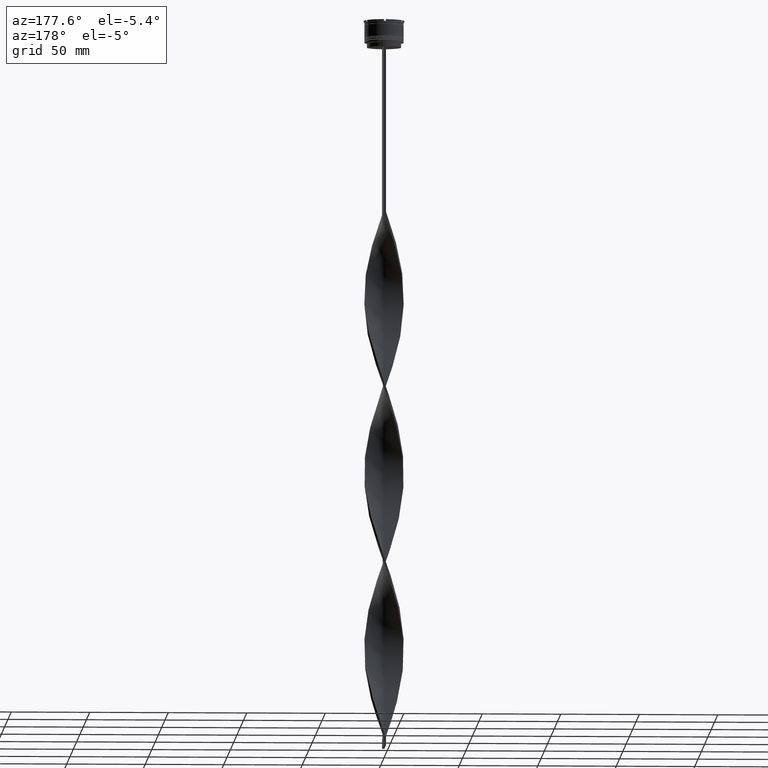
[diagram: clean part render]
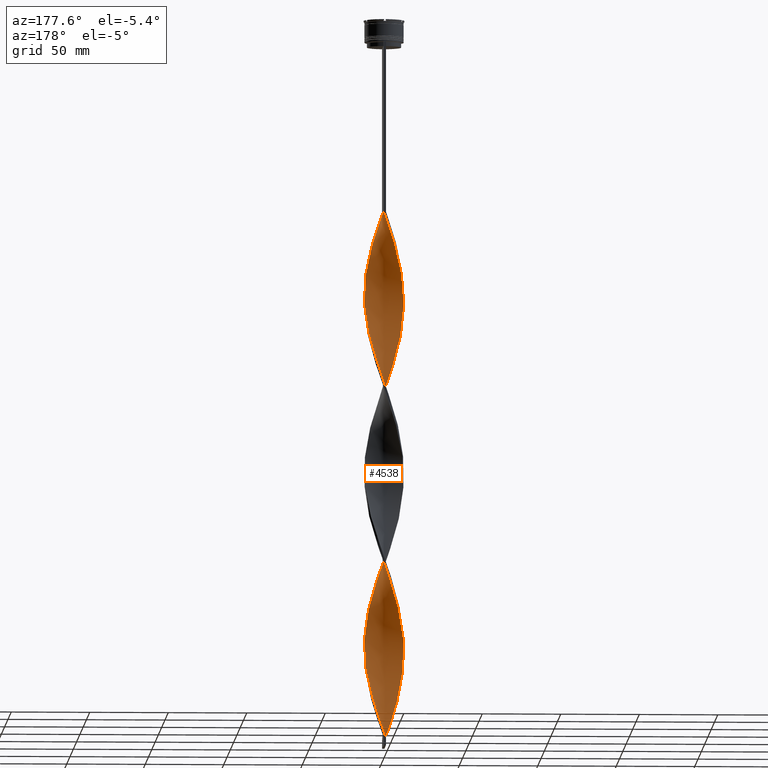
[diagram: same view with one face highlighted and labeled with its STEP entity id]
A machine part, auxiliary view. The second image highlights one B-rep face of the part: STEP entity #4538.
In plain terms, the highlighted face is a freeform B-spline surface patch.
Its self-contained STEP definition (entity closure, byte-faithful):
#3 = CARTESIAN_POINT ( 'NONE',  ( 5.874911659039469214, -11.05883868218006505, -362.2727272727273089 ) ) ;
#4 = CARTESIAN_POINT ( 'NONE',  ( 9.938015229887191992, -7.618946993550370195, -377.5454545454545610 ) ) ;
#5 = CARTESIAN_POINT ( 'NONE',  ( 0.7500000000000002220, -12.50000000000000000, -123.0000000000000000 ) ) ;
#9 = CARTESIAN_POINT ( 'NONE',  ( -6.665855411790016838, -10.63865670754232440, -217.1818181818181586 ) ) ;
#21 = CARTESIAN_POINT ( 'NONE',  ( 12.00455592986043030, -3.674953311088231089, -390.2727272727272521 ) ) ;
#29 = CARTESIAN_POINT ( 'NONE',  ( -12.47950415221662368, -1.036569397005362880, -408.0909090909091219 ) ) ;
#44 = CARTESIAN_POINT ( 'NONE',  ( 9.938015229887191992, -7.618946993550370195, -377.5454545454545610 ) ) ;
#55 = CARTESIAN_POINT ( 'NONE',  ( 7.388950367818355680, -10.11018854729806726, -143.3636363636363740 ) ) ;
#76 = CARTESIAN_POINT ( 'NONE',  ( 2.521301559826763850, -12.26603189480669442, -128.0909090909090935 ) ) ;
#97 = CARTESIAN_POINT ( 'NONE',  ( -2.802037230306997806, 12.20496158781229035, -357.1818181818181301 ) ) ;
#112 = CARTESIAN_POINT ( 'NONE',  ( -0.7499999999999986677, 12.50000000000000000, -459.0000000000000000 ) ) ;
#121 = CARTESIAN_POINT ( 'NONE',  ( -7.388950367818358345, -10.11018854729806549, -438.6363636363636829 ) ) ;
#146 = CARTESIAN_POINT ( 'NONE',  ( -11.05883868218006683, -5.874911659039464773, -306.2727272727272521 ) ) ;
#159 = CARTESIAN_POINT ( 'NONE',  ( 0.1440176444849638193, 12.55364105866909874, -456.4545454545454390 ) ) ;
#165 = CARTESIAN_POINT ( 'NONE',  ( -9.581720387053806576, -8.112045323846697187, -313.9090909090908212 ) ) ;
#168 = DIRECTION ( 'NONE',  ( 0.000000000000000000, 1.000000000000000000, 0.000000000000000000 ) ) ;
#170 = CARTESIAN_POINT ( 'NONE',  ( -1.036569397005364657, 12.47950415221662368, -352.0909090909091219 ) ) ;
#185 = CARTESIAN_POINT ( 'NONE',  ( 7.618946993550371971, 9.938015229887190216, -209.5454545454545325 ) ) ;
#186 = CARTESIAN_POINT ( 'NONE',  ( -8.955724128969263731, -8.752571355081759208, -316.4545454545454390 ) ) ;
#193 = CARTESIAN_POINT ( 'NONE',  ( -5.345974020927152459, 11.35936647350535722, -364.8181818181818130 ) ) ;
#214 = CARTESIAN_POINT ( 'NONE',  ( 7.388950367818355680, -10.11018854729806726, -143.3636363636363740 ) ) ;
#215 = CARTESIAN_POINT ( 'NONE',  ( 0.1440176444849638193, 12.55364105866909874, -232.4545454545454390 ) ) ;
#221 = CARTESIAN_POINT ( 'NONE',  ( 10.92114977348146709, 6.127070068571577544, -311.3636363636363740 ) ) ;
#223 = CARTESIAN_POINT ( 'NONE',  ( -10.11018854729806549, 7.388950367818356568, -158.6363636363636260 ) ) ;
#236 = CARTESIAN_POINT ( 'NONE',  ( 10.92114977348146354, -6.127070068571585537, -158.6363636363636260 ) ) ;
#237 = CARTESIAN_POINT ( 'NONE',  ( -11.35936647350535367, 5.345974020927156900, -273.1818181818181870 ) ) ;
#253 = CARTESIAN_POINT ( 'NONE',  ( -12.40536724576414862, -1.929121149525766965, -186.6363636363636260 ) ) ;
#255 = CARTESIAN_POINT ( 'NONE',  ( -10.63865670754232795, 6.665855411790015062, -385.1818181818181301 ) ) ;
#265 = CARTESIAN_POINT ( 'NONE',  ( -9.938015229887190216, 7.618946993550371971, -265.5454545454545041 ) ) ;
#266 = CARTESIAN_POINT ( 'NONE',  ( -6.127070068571582873, -10.92114977348146354, -326.6363636363636260 ) ) ;
#272 = CARTESIAN_POINT ( 'NONE',  ( 8.752571355081753879, 8.955724128969267284, -321.5454545454545610 ) ) ;
#279 = CARTESIAN_POINT ( 'NONE',  ( -11.35936647350535544, -5.345974020927153347, -196.8181818181818130 ) ) ;
#291 = CARTESIAN_POINT ( 'NONE',  ( 9.393097386316819453, -8.329727870884726215, -150.9999999999999716 ) ) ;
#292 = CARTESIAN_POINT ( 'NONE',  ( 8.955724128969265507, 8.752571355081755655, -428.4545454545454959 ) ) ;
#298 = CARTESIAN_POINT ( 'NONE',  ( -10.92114977348146354, -6.127070068571584649, -199.3636363636363455 ) ) ;
#304 = CARTESIAN_POINT ( 'NONE',  ( 0.1440176444849607940, -12.55364105866909874, -237.5454545454545325 ) ) ;
#306 = CARTESIAN_POINT ( 'NONE',  ( -10.11018854729806549, 7.388950367818356568, -382.6363636363636829 ) ) ;
#309 = CARTESIAN_POINT ( 'NONE',  ( 6.665855411790014173, -10.63865670754232795, -364.8181818181818130 ) ) ;
#310 = CARTESIAN_POINT ( 'NONE',  ( 11.05883868218006505, 5.874911659039468326, -418.2727272727273089 ) ) ;
#317 = CARTESIAN_POINT ( 'NONE',  ( -2.521301559826764294, -12.26603189480669442, -229.9090909090909065 ) ) ;
#324 = CARTESIAN_POINT ( 'NONE',  ( -12.20496158781229035, -2.802037230306997806, -413.1818181818181870 ) ) ;
#329 = CARTESIAN_POINT ( 'NONE',  ( 7.388950367818355680, -10.11018854729806726, -367.3636363636363740 ) ) ;
#330 = CARTESIAN_POINT ( 'NONE',  ( 7.388950367818355680, -10.11018854729806726, -367.3636363636363740 ) ) ;
#336 = CARTESIAN_POINT ( 'NONE',  ( 12.08570484828248581, -3.398585475168570014, -283.3636363636362603 ) ) ;
#348 = CARTESIAN_POINT ( 'NONE',  ( -12.50000000000000000, 0.7500000000000009992, -403.0000000000000000 ) ) ;
#355 = CARTESIAN_POINT ( 'NONE',  ( -8.955724128969263731, -8.752571355081759208, -316.4545454545454390 ) ) ;
#357 = CARTESIAN_POINT ( 'NONE',  ( -7.618946993550366642, -9.938015229887193769, -321.5454545454545610 ) ) ;
#363 = CARTESIAN_POINT ( 'NONE',  ( -5.874911659039468326, -11.05883868218006505, -219.7272727272727195 ) ) ;
#377 = CARTESIAN_POINT ( 'NONE',  ( -12.55364105866909874, 0.1440176444849590454, -288.4545454545454390 ) ) ;
#384 = CARTESIAN_POINT ( 'NONE',  ( 4.241276690728744470, -11.78236275255014576, -133.1818181818181870 ) ) ;
#394 = CARTESIAN_POINT ( 'NONE',  ( -8.329727870884727992, -9.393097386316815900, -319.0000000000000000 ) ) ;
#403 = CARTESIAN_POINT ( 'NONE',  ( -4.241276690728744470, -11.78236275255014576, -448.8181818181818130 ) ) ;
#432 = CARTESIAN_POINT ( 'NONE',  ( -3.398585475168563796, -12.08570484828248759, -451.3636363636364877 ) ) ;
#450 = CARTESIAN_POINT ( 'NONE',  ( 4.241276690728745358, 11.78236275255014576, -336.8181818181818130 ) ) ;
#453 = EDGE_CURVE ( 'NONE', #3811, #2792, #1413, .T. ) ;
#460 = CARTESIAN_POINT ( 'NONE',  ( -1.036569397005364657, 12.47950415221662368, -128.0909090909090935 ) ) ;
#471 = CARTESIAN_POINT ( 'NONE',  ( -10.48293307345756986, -6.908166116216013286, -425.9090909090908781 ) ) ;
#495 = CARTESIAN_POINT ( 'NONE',  ( -12.50000000000000000, -0.7499999999999980016, -291.0000000000000568 ) ) ;
#500 = CARTESIAN_POINT ( 'NONE',  ( 1.929121149525763412, -12.40536724576414862, -242.6363636363636260 ) ) ;
#509 = CARTESIAN_POINT ( 'NONE',  ( -1.929121149525765855, 12.40536724576414862, -130.6363636363636260 ) ) ;
#520 = CARTESIAN_POINT ( 'NONE',  ( -10.63865670754232795, -6.665855411790015062, -308.8181818181817562 ) ) ;
#524 = CARTESIAN_POINT ( 'NONE',  ( 1.644017644484960128, 12.44635894133090126, -344.4545454545453822 ) ) ;
#543 = CARTESIAN_POINT ( 'NONE',  ( 9.581720387053804799, 8.112045323846697187, -201.9090909090909065 ) ) ;
#544 = CARTESIAN_POINT ( 'NONE',  ( -10.92114977348146532, 6.127070068571582873, -270.6363636363636829 ) ) ;
#550 = CARTESIAN_POINT ( 'NONE',  ( -3.674953311088230201, 12.00455592986043030, -359.7272727272726911 ) ) ;
#552 = CARTESIAN_POINT ( 'NONE',  ( -8.955724128969265507, 8.752571355081757432, -153.5454545454545325 ) ) ;
#566 = CARTESIAN_POINT ( 'NONE',  ( 5.083967906288925143, -11.47902065681779860, -135.7272727272726911 ) ) ;
#568 = CARTESIAN_POINT ( 'NONE',  ( 1.929121149525765855, 12.40536724576414862, -227.3636363636363171 ) ) ;
#576 = CARTESIAN_POINT ( 'NONE',  ( -1.929121149525765855, 12.40536724576414862, -130.6363636363636545 ) ) ;
#595 = CARTESIAN_POINT ( 'NONE',  ( -1.644017644484961016, 12.44635894133090126, -237.5454545454545325 ) ) ;
#596 = CARTESIAN_POINT ( 'NONE',  ( -5.874911659039470990, 11.05883868218006505, -250.2727272727273089 ) ) ;
#611 = CARTESIAN_POINT ( 'NONE',  ( -9.393097386316819453, -8.329727870884724439, -207.0000000000000284 ) ) ;
#621 = CARTESIAN_POINT ( 'NONE',  ( 2.521301559826763850, -12.26603189480669442, -128.0909090909090935 ) ) ;
#643 = CARTESIAN_POINT ( 'NONE',  ( 4.241276690728744470, -11.78236275255014576, -133.1818181818181870 ) ) ;
#651 = CARTESIAN_POINT ( 'NONE',  ( 6.908166116216011510, -10.48293307345756986, -257.9090909090909349 ) ) ;
#662 = CARTESIAN_POINT ( 'NONE',  ( -12.40536724576414862, -1.929121149525766965, -410.6363636363635692 ) ) ;
#667 = CARTESIAN_POINT ( 'NONE',  ( 11.47902065681779860, 5.083967906288924254, -415.7272727272726911 ) ) ;
#668 = CARTESIAN_POINT ( 'NONE',  ( 12.47950415221662368, -1.036569397005364435, -397.9090909090909349 ) ) ;
#674 = CARTESIAN_POINT ( 'NONE',  ( -10.48293307345756986, -6.908166116216013286, -201.9090909090908781 ) ) ;
#681 = CARTESIAN_POINT ( 'NONE',  ( -10.92114977348146354, -6.127070068571584649, -423.3636363636363740 ) ) ;
#685 = CARTESIAN_POINT ( 'NONE',  ( 2.521301559826763850, -12.26603189480669442, -352.0909090909091219 ) ) ;
#686 = CARTESIAN_POINT ( 'NONE',  ( 5.874911659039469214, -11.05883868218006505, -362.2727272727273089 ) ) ;
#692 = CARTESIAN_POINT ( 'NONE',  ( -1.644017644484964125, -12.44635894133090126, -232.4545454545454390 ) ) ;
#701 = CARTESIAN_POINT ( 'NONE',  ( -8.112045323846697187, -9.581720387053803023, -436.0909090909090651 ) ) ;
#706 = CARTESIAN_POINT ( 'NONE',  ( -11.05883868218006683, -5.874911659039464773, -306.2727272727272521 ) ) ;
#707 = CARTESIAN_POINT ( 'NONE',  ( -0.7499999999999986677, 12.50000000000000000, -459.0000000000000000 ) ) ;
#714 = CARTESIAN_POINT ( 'NONE',  ( 11.68196120168289731, 4.510463666007686889, -306.2727272727272521 ) ) ;
#724 = CARTESIAN_POINT ( 'NONE',  ( -10.48293307345756809, -6.908166116216013286, -425.9090909090908212 ) ) ;
#730 = CARTESIAN_POINT ( 'NONE',  ( -12.40536724576414684, 1.929121149525772294, -283.3636363636363171 ) ) ;
#737 = CARTESIAN_POINT ( 'NONE',  ( 9.393097386316817676, 8.329727870884722662, -319.0000000000000000 ) ) ;
#753 = CARTESIAN_POINT ( 'NONE',  ( -4.510463666007692218, -11.68196120168289553, -331.7272727272727479 ) ) ;
#759 = CARTESIAN_POINT ( 'NONE',  ( -5.083967906288923366, -11.47902065681780037, -446.2727272727271952 ) ) ;
#776 = CARTESIAN_POINT ( 'NONE',  ( -0.1440176444849628479, 12.55364105866909874, -349.5454545454545610 ) ) ;
#803 = CARTESIAN_POINT ( 'NONE',  ( -12.44635894133090126, 1.644017644484963236, -400.4545454545453822 ) ) ;
#811 = CARTESIAN_POINT ( 'NONE',  ( -0.1440176444849628479, 12.55364105866909874, -125.5454545454545467 ) ) ;
#814 = CARTESIAN_POINT ( 'NONE',  ( 1.929121149525765855, 12.40536724576414862, -451.3636363636364308 ) ) ;
#823 = CARTESIAN_POINT ( 'NONE',  ( -1.036569397005364657, 12.47950415221662368, -352.0909090909091219 ) ) ;
#841 = CARTESIAN_POINT ( 'NONE',  ( 10.63865670754232617, 6.665855411790015950, -196.8181818181817846 ) ) ;
#864 = CARTESIAN_POINT ( 'NONE',  ( -11.78236275255014576, -4.241276690728740029, -301.1818181818182438 ) ) ;
#870 = CARTESIAN_POINT ( 'NONE',  ( 12.55364105866909874, 0.1440176444849655957, -293.5454545454545041 ) ) ;
#872 = CARTESIAN_POINT ( 'NONE',  ( -3.674953311088230201, 12.00455592986043030, -135.7272727272726911 ) ) ;
#893 = CARTESIAN_POINT ( 'NONE',  ( -12.40536724576414684, 1.929121149525772072, -283.3636363636362603 ) ) ;
#897 = CARTESIAN_POINT ( 'NONE',  ( -0.1440176444849628479, 12.55364105866909874, -349.5454545454545610 ) ) ;
#899 = CARTESIAN_POINT ( 'NONE',  ( -9.581720387053804799, 8.112045323846698963, -156.0909090909090935 ) ) ;
#906 = CARTESIAN_POINT ( 'NONE',  ( -6.665855411790016838, -10.63865670754232440, -217.1818181818181586 ) ) ;
#916 = CARTESIAN_POINT ( 'NONE',  ( -3.398585475168561576, 12.08570484828248759, -242.6363636363636260 ) ) ;
#917 = CARTESIAN_POINT ( 'NONE',  ( 12.55364105866909874, -0.1440176444849629589, -176.4545454545454390 ) ) ;
#922 = CARTESIAN_POINT ( 'NONE',  ( 4.241276690728745358, 11.78236275255014576, -336.8181818181818130 ) ) ;
#938 = CARTESIAN_POINT ( 'NONE',  ( -0.7499999999999986677, 12.50000000000000000, -235.0000000000000000 ) ) ;
#939 = CARTESIAN_POINT ( 'NONE',  ( 11.68196120168289553, -4.510463666007692218, -163.7272727272727195 ) ) ;
#947 = CARTESIAN_POINT ( 'NONE',  ( 10.48293307345756986, 6.908166116216011510, -313.9090909090908781 ) ) ;
#949 = CARTESIAN_POINT ( 'NONE',  ( -11.78236275255014576, 4.241276690728745358, -168.8181818181818130 ) ) ;
#966 = CARTESIAN_POINT ( 'NONE',  ( -8.752571355081755655, 8.955724128969267284, -260.4545454545454959 ) ) ;
#967 = CARTESIAN_POINT ( 'NONE',  ( 2.802037230306997806, 12.20496158781229035, -448.8181818181818130 ) ) ;
#973 = CARTESIAN_POINT ( 'NONE',  ( 12.47950415221662368, 1.036569397005361104, -296.0909090909090651 ) ) ;
#986 = CARTESIAN_POINT ( 'NONE',  ( -9.581720387053804799, 8.112045323846697187, -380.0909090909090651 ) ) ;
#991 = CARTESIAN_POINT ( 'NONE',  ( 8.752571355081757432, -8.955724128969265507, -148.4545454545454390 ) ) ;
#992 = CARTESIAN_POINT ( 'NONE',  ( 6.665855411790015062, -10.63865670754232795, -364.8181818181818130 ) ) ;
#996 = CARTESIAN_POINT ( 'NONE',  ( -0.7500000000000017764, -12.50000000000000000, -235.0000000000000000 ) ) ;
#1009 = CARTESIAN_POINT ( 'NONE',  ( 12.20496158781229035, -2.802037230306999582, -392.8181818181818699 ) ) ;
#1010 = CARTESIAN_POINT ( 'NONE',  ( -5.345974020927156900, -11.35936647350535367, -329.1818181818180733 ) ) ;
#1018 = CARTESIAN_POINT ( 'NONE',  ( 5.345974020927153347, -11.35936647350535722, -252.8181818181817562 ) ) ;
#1027 = CARTESIAN_POINT ( 'NONE',  ( -1.644017644484964125, -12.44635894133090126, -456.4545454545454390 ) ) ;
#1034 = CARTESIAN_POINT ( 'NONE',  ( 9.393097386316819453, -8.329727870884726215, -374.9999999999999432 ) ) ;
#1035 = CARTESIAN_POINT ( 'NONE',  ( 12.00455592986043030, -3.674953311088231089, -390.2727272727272521 ) ) ;
#1041 = CARTESIAN_POINT ( 'NONE',  ( -12.44635894133090126, 1.644017644484963236, -176.4545454545454390 ) ) ;
#1054 = CARTESIAN_POINT ( 'NONE',  ( 10.11018854729806549, 7.388950367818355680, -423.3636363636363740 ) ) ;
#1055 = CARTESIAN_POINT ( 'NONE',  ( 12.08570484828248759, 3.398585475168564685, -410.6363636363636260 ) ) ;
#1061 = CARTESIAN_POINT ( 'NONE',  ( 12.40536724576414862, 1.929121149525767853, -298.6363636363635692 ) ) ;
#1071 = CARTESIAN_POINT ( 'NONE',  ( -11.47902065681779860, -5.083967906288925143, -303.7272727272727479 ) ) ;
#1081 = CARTESIAN_POINT ( 'NONE',  ( 12.50000000000000000, -0.7500000000000025535, -291.0000000000000568 ) ) ;
#1096 = CARTESIAN_POINT ( 'NONE',  ( 12.50000000000000000, 0.7499999999999994449, -403.0000000000000000 ) ) ;
#1106 = CARTESIAN_POINT ( 'NONE',  ( -9.393097386316819453, -8.329727870884724439, -430.9999999999999432 ) ) ;
#1126 = CARTESIAN_POINT ( 'NONE',  ( 8.752571355081757432, -8.955724128969265507, -148.4545454545454390 ) ) ;
#1137 = CARTESIAN_POINT ( 'NONE',  ( -11.47902065681779860, 5.083967906288926031, -166.2727272727272521 ) ) ;
#1147 = CARTESIAN_POINT ( 'NONE',  ( 10.48293307345756986, -6.908166116216013286, -156.0909090909090935 ) ) ;
#1176 = CARTESIAN_POINT ( 'NONE',  ( -3.674953311088230201, 12.00455592986043030, -359.7272727272726343 ) ) ;
#1185 = CARTESIAN_POINT ( 'NONE',  ( -11.05883868218006505, 5.874911659039470102, -163.7272727272727195 ) ) ;
#1196 = CARTESIAN_POINT ( 'NONE',  ( 0.7500000000000002220, -12.50000000000000000, -123.0000000000000000 ) ) ;
#1216 = CARTESIAN_POINT ( 'NONE',  ( -2.521301559826761629, 12.26603189480669798, -240.0909090909090651 ) ) ;
#1222 = CARTESIAN_POINT ( 'NONE',  ( -2.802037230306997806, 12.20496158781229035, -133.1818181818181870 ) ) ;
#1241 = CARTESIAN_POINT ( 'NONE',  ( -1.644017644484961016, 12.44635894133090126, -237.5454545454545325 ) ) ;
#1247 = CARTESIAN_POINT ( 'NONE',  ( 6.908166116216011510, -10.48293307345756809, -257.9090909090909349 ) ) ;
#1249 = CARTESIAN_POINT ( 'NONE',  ( -6.908166116216011510, 10.48293307345756986, -145.9090909090909065 ) ) ;
#1259 = CARTESIAN_POINT ( 'NONE',  ( -1.644017644484964125, -12.44635894133090126, -232.4545454545454390 ) ) ;
#1262 = B_SPLINE_CURVE_WITH_KNOTS ( 'NONE', 3,
 ( #1929, #4401, #2619, #4049 ),
 .UNSPECIFIED., .F., .F.,
 ( 4, 4 ),
 ( 0.000000000000000000, 1.000000000000000000 ),
 .UNSPECIFIED. ) ;
#1270 = CARTESIAN_POINT ( 'NONE',  ( -2.521301559826761629, 12.26603189480669798, -240.0909090909090651 ) ) ;
#1271 = CARTESIAN_POINT ( 'NONE',  ( 12.08570484828248759, 3.398585475168564685, -186.6363636363636260 ) ) ;
#1276 = CARTESIAN_POINT ( 'NONE',  ( 12.40536724576414862, 1.929121149525767853, -298.6363636363635692 ) ) ;
#1292 = CARTESIAN_POINT ( 'NONE',  ( 3.674953311088228425, 12.00455592986043207, -222.2727272727272805 ) ) ;
#1293 = CARTESIAN_POINT ( 'NONE',  ( -4.241276690728740917, 11.78236275255014576, -245.1818181818181870 ) ) ;
#1314 = CARTESIAN_POINT ( 'NONE',  ( -5.874911659039470990, 11.05883868218006505, -250.2727272727273089 ) ) ;
#1315 = CARTESIAN_POINT ( 'NONE',  ( -6.665855411790015950, 10.63865670754232795, -252.8181818181817562 ) ) ;
#1322 = CARTESIAN_POINT ( 'NONE',  ( 3.398585475168571346, 12.08570484828248581, -339.3636363636363171 ) ) ;
#1328 = ORIENTED_EDGE ( 'NONE', *, *, #2916, .T. ) ;
#1333 = CARTESIAN_POINT ( 'NONE',  ( -9.938015229887191992, -7.618946993550368418, -428.4545454545454959 ) ) ;
#1338 = CARTESIAN_POINT ( 'NONE',  ( -10.48293307345756631, 6.908166116216014174, -268.0909090909090651 ) ) ;
#1339 = CARTESIAN_POINT ( 'NONE',  ( 11.68196120168289553, -4.510463666007692218, -387.7272727272727479 ) ) ;
#1346 = CARTESIAN_POINT ( 'NONE',  ( 5.874911659039470102, 11.05883868218006505, -331.7272727272727479 ) ) ;
#1354 = CARTESIAN_POINT ( 'NONE',  ( -12.00455592986043030, -3.674953311088229313, -191.7272727272727479 ) ) ;
#1367 = CARTESIAN_POINT ( 'NONE',  ( -12.08570484828248759, 3.398585475168562908, -171.3636363636363171 ) ) ;
#1377 = CARTESIAN_POINT ( 'NONE',  ( -11.78236275255014576, 4.241276690728745358, -392.8181818181818699 ) ) ;
#1382 = CARTESIAN_POINT ( 'NONE',  ( -12.08570484828248759, -3.398585475168566017, -298.6363636363635692 ) ) ;
#1383 = CARTESIAN_POINT ( 'NONE',  ( 12.40536724576414862, -1.929121149525764967, -395.3636363636362603 ) ) ;
#1390 = CARTESIAN_POINT ( 'NONE',  ( -4.241276690728744470, -11.78236275255014576, -224.8181818181818130 ) ) ;
#1410 = CARTESIAN_POINT ( 'NONE',  ( 12.26603189480669798, 2.521301559826762517, -408.0909090909091219 ) ) ;
#1411 = CARTESIAN_POINT ( 'NONE',  ( 4.510463666007690442, 11.68196120168289553, -443.7272727272727479 ) ) ;
#1413 =( BOUNDED_CURVE ( )  B_SPLINE_CURVE ( 2, ( #2272, #811, #460, #509, #3693, #1580, #1935, #3368, #3311, #2669, #1498, #4100, #4362, #1536, #2966, #4408, #1185, #1137, #2622, #4005, #4054, #3063, #3796, #2723, #4151, #253, #2061, #1354, #3137, #279, #2743, #4176, #3870, #611, #3468, #4129, #2369, #906, #2015, #1958, #3108, #3035, #4486, #1259, #2091, #304, #1729, #500, #3003, #1650, #1928, #2315, #2714, #1247, #1673, #1574, #3785, #4524, #2736, #3361, #4448, #3816, #3077, #2659, #4088, #4165, #2004, #870, #973, #1276, #3439, #4474, #1623, #2339, #221, #947, #2387, #3101, #3739, #2029, #3762, #4546, #3383, #4146, #922, #1322, #2762, #524, #1951, #897, #170, #1595, #3025, #550, #3406, #193, #3872, #2112, #2132, #2158, #3558, #986, #306, #255, #2771, #2437, #1377, #3179, #2465, #4580, #348, #3899, #1710, #662, #324, #3540, #2837, #2094, #681, #724, #1333, #2790, #3138, #701, #1751, #3204, #1774, #2485, #3521, #4645, #1684, #1027, #1425 ),
 .UNSPECIFIED., .F., .T. ) 
 B_SPLINE_CURVE_WITH_KNOTS ( ( 3, 2, 2, 2, 2, 2, 2, 2, 2, 2, 2, 2, 2, 2, 2, 2, 2, 2, 2, 2, 2, 2, 2, 2, 2, 2, 2, 2, 2, 2, 2, 2, 2, 2, 2, 2, 2, 2, 2, 2, 2, 2, 2, 2, 2, 2, 2, 2, 2, 2, 2, 2, 2, 2, 2, 2, 2, 2, 2, 2, 2, 2, 2, 2, 2, 2, 3 ),
 ( 0.000000000000000000, 0.01136363636363636222, 0.02272727272727272443, 0.03409090909090908839, 0.04545454545454544887, 0.05681818181818181629, 0.06818181818181817677, 0.07954545454545454419, 0.09090909090909089774, 0.1022727272727272790, 0.1136363636363636326, 0.1250000000000000000, 0.1363636363636363535, 0.1477272727272727348, 0.1590909090909090884, 0.1704545454545454419, 0.1818181818181817955, 0.1931818181818182045, 0.2045454545454545581, 0.2159090909090909116, 0.2272727272727272652, 0.2386363636363636465, 0.2500000000000000000, 0.2613636363636363535, 0.2727272727272727071, 0.2840909090909091161, 0.2954545454545454697, 0.3068181818181818232, 0.3181818181818181768, 0.3295454545454545303, 0.3409090909090908839, 0.3522727272727272929, 0.3636363636363635909, 0.3750000000000000000, 0.3863636363636364091, 0.3977272727272727071, 0.4090909090909091161, 0.4204545454545454697, 0.4318181818181818232, 0.4431818181818181768, 0.4545454545454545303, 0.4659090909090908839, 0.4772727272727272929, 0.4886363636363635909, 0.5000000000000000000, 0.5113636363636363535, 0.5227272727272727071, 0.5340909090909090606, 0.5454545454545454142, 0.5568181818181817677, 0.5681818181818182323, 0.5795454545454545858, 0.5909090909090909394, 0.6022727272727272929, 0.6136363636363636465, 0.6250000000000000000, 0.6363636363636363535, 0.6477272727272727071, 0.6590909090909090606, 0.6704545454545454142, 0.6818181818181817677, 0.6931818181818182323, 0.7045454545454545858, 0.7159090909090909394, 0.7272727272727271819, 0.7386363636363636465, 0.7500000000000000000 ),
 .UNSPECIFIED. ) 
 CURVE ( )  GEOMETRIC_REPRESENTATION_ITEM ( )  RATIONAL_B_SPLINE_CURVE ( ( 1.000000000000000000, 0.9974521146102535152, 1.000000000000000000, 0.9974521146102535152, 1.000000000000000000, 0.9974521146102535152, 1.000000000000000000, 0.9974521146102535152, 1.000000000000000000, 0.9974521146102535152, 1.000000000000000000, 0.9974521146102535152, 1.000000000000000000, 0.9974521146102535152, 1.000000000000000000, 0.9974521146102535152, 1.000000000000000000, 0.9974521146102535152, 1.000000000000000000, 0.9974521146102535152, 1.000000000000000000, 0.9974521146102535152, 1.000000000000000000, 0.9974521146102535152, 1.000000000000000000, 0.9974521146102535152, 1.000000000000000000, 0.9974521146102535152, 1.000000000000000000, 0.9974521146102535152, 1.000000000000000000, 0.9974521146102535152, 1.000000000000000000, 0.9974521146102535152, 1.000000000000000000, 0.9974521146102535152, 1.000000000000000000, 0.9974521146102535152, 1.000000000000000000, 0.9974521146102535152, 1.000000000000000000, 0.9974521146102535152, 1.000000000000000000, 0.9974521146102535152, 1.000000000000000000, 0.9974521146102535152, 1.000000000000000000, 0.9974521146102535152, 1.000000000000000000, 0.9974521146102535152, 1.000000000000000000, 0.9974521146102535152, 1.000000000000000000, 0.9974521146102535152, 1.000000000000000000, 0.9974521146102535152, 1.000000000000000000, 0.9974521146102535152, 1.000000000000000000, 0.9974521146102535152, 1.000000000000000000, 0.9974521146102535152, 1.000000000000000000, 0.9974521146102535152, 1.000000000000000000, 0.9974521146102535152, 1.000000000000000000, 0.9974521146102535152, 1.000000000000000000, 0.9974521146102535152, 1.000000000000000000, 0.9974521146102535152, 1.000000000000000000, 0.9974521146102535152, 1.000000000000000000, 0.9974521146102535152, 1.000000000000000000, 0.9974521146102535152, 1.000000000000000000, 0.9974521146102535152, 1.000000000000000000, 0.9974521146102535152, 1.000000000000000000, 0.9974521146102535152, 1.000000000000000000, 0.9974521146102535152, 1.000000000000000000, 0.9974521146102535152, 1.000000000000000000, 0.9974521146102535152, 1.000000000000000000, 0.9974521146102535152, 1.000000000000000000, 0.9974521146102535152, 1.000000000000000000, 0.9974521146102535152, 1.000000000000000000, 0.9974521146102535152, 1.000000000000000000, 0.9974521146102535152, 1.000000000000000000, 0.9974521146102535152, 1.000000000000000000, 0.9974521146102535152, 1.000000000000000000, 0.9974521146102535152, 1.000000000000000000, 0.9974521146102535152, 1.000000000000000000, 0.9974521146102535152, 1.000000000000000000, 0.9974521146102535152, 1.000000000000000000, 0.9974521146102535152, 1.000000000000000000, 0.9974521146102535152, 1.000000000000000000, 0.9974521146102535152, 1.000000000000000000, 0.9974521146102535152, 1.000000000000000000, 0.9974521146102535152, 1.000000000000000000, 0.9974521146102535152, 1.000000000000000000, 0.9974521146102535152, 1.000000000000000000, 0.9974521146102535152, 1.000000000000000000, 0.9974521146102535152, 1.000000000000000000, 0.9974521146102535152, 1.000000000000000000 ) ) 
 REPRESENTATION_ITEM ( '' )  );
#1418 = CARTESIAN_POINT ( 'NONE',  ( -12.26603189480669442, 2.521301559826763850, -173.9090909090909065 ) ) ;
#1425 = CARTESIAN_POINT ( 'NONE',  ( -0.7500000000000017764, -12.50000000000000000, -459.0000000000000000 ) ) ;
#1432 = CARTESIAN_POINT ( 'NONE',  ( 8.329727870884726215, 9.393097386316817676, -430.9999999999999432 ) ) ;
#1433 = CARTESIAN_POINT ( 'NONE',  ( 7.618946993550371971, 9.938015229887190216, -433.5454545454545610 ) ) ;
#1440 = CARTESIAN_POINT ( 'NONE',  ( -7.388950367818358345, -10.11018854729806549, -214.6363636363636260 ) ) ;
#1452 = CARTESIAN_POINT ( 'NONE',  ( -1.036569397005366655, -12.47950415221662368, -341.9090909090909349 ) ) ;
#1460 = CARTESIAN_POINT ( 'NONE',  ( -1.929121149525765855, 12.40536724576414862, -354.6363636363635692 ) ) ;
#1478 = CARTESIAN_POINT ( 'NONE',  ( -11.68196120168289553, 4.510463666007691330, -275.7272727272726911 ) ) ;
#1487 = CARTESIAN_POINT ( 'NONE',  ( 2.521301559826766070, 12.26603189480669442, -341.9090909090909349 ) ) ;
#1498 = CARTESIAN_POINT ( 'NONE',  ( -7.618946993550370195, 9.938015229887191992, -148.4545454545454390 ) ) ;
#1505 = CARTESIAN_POINT ( 'NONE',  ( -12.20496158781229035, -2.802037230306997806, -413.1818181818181870 ) ) ;
#1526 = CARTESIAN_POINT ( 'NONE',  ( -0.7500000000000017764, -12.50000000000000000, -459.0000000000000000 ) ) ;
#1527 = CARTESIAN_POINT ( 'NONE',  ( -11.47902065681779860, 5.083967906288926031, -390.2727272727272521 ) ) ;
#1536 = CARTESIAN_POINT ( 'NONE',  ( -9.581720387053804799, 8.112045323846697187, -156.0909090909090935 ) ) ;
#1548 = CARTESIAN_POINT ( 'NONE',  ( -4.510463666007691330, 11.68196120168289553, -362.2727272727273089 ) ) ;
#1562 = CARTESIAN_POINT ( 'NONE',  ( 6.127070068571586425, 10.92114977348146354, -438.6363636363636829 ) ) ;
#1569 = CARTESIAN_POINT ( 'NONE',  ( 5.345974020927156012, 11.35936647350535367, -217.1818181818181586 ) ) ;
#1574 = CARTESIAN_POINT ( 'NONE',  ( 8.329727870884724439, -9.393097386316819453, -262.9999999999999432 ) ) ;
#1580 = CARTESIAN_POINT ( 'NONE',  ( -3.674953311088230201, 12.00455592986043030, -135.7272727272726911 ) ) ;
#1591 = CARTESIAN_POINT ( 'NONE',  ( -9.393097386316817676, 8.329727870884726215, -262.9999999999999432 ) ) ;
#1595 = CARTESIAN_POINT ( 'NONE',  ( -1.929121149525765855, 12.40536724576414862, -354.6363636363635692 ) ) ;
#1598 = CARTESIAN_POINT ( 'NONE',  ( -0.1440176444849628479, 12.55364105866909874, -125.5454545454545467 ) ) ;
#1614 = CARTESIAN_POINT ( 'NONE',  ( 2.802037230306997806, 12.20496158781229035, -224.8181818181818130 ) ) ;
#1616 = CARTESIAN_POINT ( 'NONE',  ( -8.329727870884727992, -9.393097386316815900, -319.0000000000000000 ) ) ;
#1623 = CARTESIAN_POINT ( 'NONE',  ( 11.68196120168289731, 4.510463666007686889, -306.2727272727272521 ) ) ;
#1643 = CARTESIAN_POINT ( 'NONE',  ( 9.938015229887191992, -7.618946993550370195, -153.5454545454545325 ) ) ;
#1644 = CARTESIAN_POINT ( 'NONE',  ( -0.7499999999999986677, 12.50000000000000000, -235.0000000000000000 ) ) ;
#1650 = CARTESIAN_POINT ( 'NONE',  ( 3.674953311088231089, -12.00455592986043030, -247.7272727272727195 ) ) ;
#1652 = CARTESIAN_POINT ( 'NONE',  ( -10.63865670754232795, 6.665855411790015950, -161.1818181818181870 ) ) ;
#1668 = CARTESIAN_POINT ( 'NONE',  ( 6.908166116216014174, 10.48293307345756809, -212.0909090909090651 ) ) ;
#1673 = CARTESIAN_POINT ( 'NONE',  ( 7.618946993550368418, -9.938015229887193769, -260.4545454545454959 ) ) ;
#1684 = CARTESIAN_POINT ( 'NONE',  ( -2.521301559826764294, -12.26603189480669442, -453.9090909090909349 ) ) ;
#1693 = CARTESIAN_POINT ( 'NONE',  ( -10.92114977348146532, 6.127070068571582873, -270.6363636363636829 ) ) ;
#1694 = CARTESIAN_POINT ( 'NONE',  ( -4.510463666007692218, -11.68196120168289553, -331.7272727272727479 ) ) ;
#1702 = CARTESIAN_POINT ( 'NONE',  ( 8.112045323846700740, 9.581720387053801247, -324.0909090909090082 ) ) ;
#1710 = CARTESIAN_POINT ( 'NONE',  ( -12.47950415221662368, -1.036569397005362880, -408.0909090909091219 ) ) ;
#1717 = CARTESIAN_POINT ( 'NONE',  ( 12.47950415221662368, -1.036569397005364435, -173.9090909090909065 ) ) ;
#1718 = CARTESIAN_POINT ( 'NONE',  ( 10.48293307345756986, -6.908166116216013286, -380.0909090909090651 ) ) ;
#1723 = CARTESIAN_POINT ( 'NONE',  ( -9.938015229887191992, -7.618946993550368418, -204.4545454545454390 ) ) ;
#1729 = CARTESIAN_POINT ( 'NONE',  ( 1.036569397005361992, -12.47950415221662368, -240.0909090909090651 ) ) ;
#1734 = CARTESIAN_POINT ( 'NONE',  ( 3.398585475168564241, -12.08570484828248759, -354.6363636363635692 ) ) ;
#1735 = CARTESIAN_POINT ( 'NONE',  ( 10.63865670754232617, 6.665855411790015950, -420.8181818181818130 ) ) ;
#1742 = CARTESIAN_POINT ( 'NONE',  ( 12.47950415221662368, 1.036569397005361104, -296.0909090909090651 ) ) ;
#1751 = CARTESIAN_POINT ( 'NONE',  ( -7.388950367818358345, -10.11018854729806549, -438.6363636363636829 ) ) ;
#1755 = CARTESIAN_POINT ( 'NONE',  ( 11.35936647350535722, -5.345974020927153347, -385.1818181818181301 ) ) ;
#1756 = CARTESIAN_POINT ( 'NONE',  ( 9.581720387053804799, 8.112045323846698963, -425.9090909090908781 ) ) ;
#1763 = CARTESIAN_POINT ( 'NONE',  ( -8.752571355081759208, -8.955724128969263731, -209.5454545454545325 ) ) ;
#1774 = CARTESIAN_POINT ( 'NONE',  ( -5.874911659039468326, -11.05883868218006505, -443.7272727272727479 ) ) ;
#1782 = CARTESIAN_POINT ( 'NONE',  ( 8.955724128969265507, 8.752571355081755655, -428.4545454545454959 ) ) ;
#1783 = CARTESIAN_POINT ( 'NONE',  ( -1.929121149525772960, -12.40536724576414684, -339.3636363636362603 ) ) ;
#1789 = CARTESIAN_POINT ( 'NONE',  ( 9.938015229887190216, 7.618946993550371971, -316.4545454545454390 ) ) ;
#1803 = CARTESIAN_POINT ( 'NONE',  ( -9.581720387053806576, -8.112045323846695410, -313.9090909090908781 ) ) ;
#1810 = CARTESIAN_POINT ( 'NONE',  ( -12.08570484828248759, 3.398585475168562908, -395.3636363636362603 ) ) ;
#1820 = CARTESIAN_POINT ( 'NONE',  ( -6.908166116216016839, -10.48293307345756453, -324.0909090909090651 ) ) ;
#1827 = CARTESIAN_POINT ( 'NONE',  ( 6.665855411790015062, -10.63865670754232795, -140.8181818181818130 ) ) ;
#1845 = CARTESIAN_POINT ( 'NONE',  ( 1.036569397005364879, 12.47950415221662368, -453.9090909090909349 ) ) ;
#1855 = CARTESIAN_POINT ( 'NONE',  ( -1.644017644484964125, -12.44635894133090126, -456.4545454545454959 ) ) ;
#1873 = CARTESIAN_POINT ( 'NONE',  ( -6.127070068571584649, 10.92114977348146354, -367.3636363636363740 ) ) ;
#1894 = CARTESIAN_POINT ( 'NONE',  ( -9.938015229887191992, -7.618946993550368418, -428.4545454545454959 ) ) ;
#1923 = CARTESIAN_POINT ( 'NONE',  ( -12.26603189480669798, -2.521301559826760741, -296.0909090909090651 ) ) ;
#1928 = CARTESIAN_POINT ( 'NONE',  ( 4.510463666007693107, -11.68196120168289553, -250.2727272727273089 ) ) ;
#1929 = CARTESIAN_POINT ( 'NONE',  ( -0.7500000000000017764, -12.50000000000000000, -459.0000000000000000 ) ) ;
#1935 = CARTESIAN_POINT ( 'NONE',  ( -4.510463666007691330, 11.68196120168289553, -138.2727272727272805 ) ) ;
#1946 = CARTESIAN_POINT ( 'NONE',  ( -10.11018854729807082, -7.388950367818350351, -311.3636363636363740 ) ) ;
#1951 = CARTESIAN_POINT ( 'NONE',  ( 0.7500000000000002220, 12.50000000000000000, -347.0000000000000000 ) ) ;
#1958 = CARTESIAN_POINT ( 'NONE',  ( -5.083967906288923366, -11.47902065681780037, -222.2727272727272805 ) ) ;
#1968 = CARTESIAN_POINT ( 'NONE',  ( 8.955724128969265507, 8.752571355081755655, -204.4545454545454390 ) ) ;
#1969 = CARTESIAN_POINT ( 'NONE',  ( -12.44635894133090126, -1.644017644484965679, -293.5454545454544473 ) ) ;
#1997 = CARTESIAN_POINT ( 'NONE',  ( -5.083967906288926031, 11.47902065681779860, -247.7272727272726911 ) ) ;
#2004 = CARTESIAN_POINT ( 'NONE',  ( 12.50000000000000000, -0.7500000000000025535, -291.0000000000000568 ) ) ;
#2006 = CARTESIAN_POINT ( 'NONE',  ( -6.127070068571584649, 10.92114977348146354, -143.3636363636363740 ) ) ;
#2015 = CARTESIAN_POINT ( 'NONE',  ( -5.874911659039468326, -11.05883868218006505, -219.7272727272727195 ) ) ;
#2023 = CARTESIAN_POINT ( 'NONE',  ( -5.083967906288926031, 11.47902065681779860, -247.7272727272727195 ) ) ;
#2024 = CARTESIAN_POINT ( 'NONE',  ( 8.329727870884726215, 9.393097386316817676, -207.0000000000000284 ) ) ;
#2029 = CARTESIAN_POINT ( 'NONE',  ( 8.112045323846698963, 9.581720387053801247, -324.0909090909090651 ) ) ;
#2048 = CARTESIAN_POINT ( 'NONE',  ( 5.345974020927156012, 11.35936647350535367, -217.1818181818181586 ) ) ;
#2061 = CARTESIAN_POINT ( 'NONE',  ( -12.20496158781229035, -2.802037230306997806, -189.1818181818181870 ) ) ;
#2073 = CARTESIAN_POINT ( 'NONE',  ( 12.50000000000000000, 0.7499999999999994449, -179.0000000000000000 ) ) ;
#2074 = CARTESIAN_POINT ( 'NONE',  ( -3.674953311088235530, -12.00455592986042852, -334.2727272727272521 ) ) ;
#2081 = CARTESIAN_POINT ( 'NONE',  ( 12.20496158781229035, 2.802037230306993365, -301.1818181818182438 ) ) ;
#2091 = CARTESIAN_POINT ( 'NONE',  ( -0.7500000000000017764, -12.50000000000000000, -235.0000000000000000 ) ) ;
#2094 = CARTESIAN_POINT ( 'NONE',  ( -11.35936647350535544, -5.345974020927153347, -420.8181818181818130 ) ) ;
#2098 = CARTESIAN_POINT ( 'NONE',  ( 11.05883868218006505, 5.874911659039468326, -418.2727272727273089 ) ) ;
#2099 = CARTESIAN_POINT ( 'NONE',  ( 11.35936647350535722, -5.345974020927153347, -385.1818181818180733 ) ) ;
#2105 = CARTESIAN_POINT ( 'NONE',  ( 11.47902065681779682, -5.083967906288929584, -278.2727272727271952 ) ) ;
#2111 = EDGE_LOOP ( 'NONE', ( #4424, #1328, #2703, #4125 ) ) ;
#2112 = CARTESIAN_POINT ( 'NONE',  ( -6.908166116216011510, 10.48293307345756809, -369.9090909090909349 ) ) ;
#2117 = CARTESIAN_POINT ( 'NONE',  ( 4.241276690728744470, -11.78236275255014576, -357.1818181818181301 ) ) ;
#2118 = CARTESIAN_POINT ( 'NONE',  ( -0.1440176444849599058, -12.55364105866909874, -344.4545454545453254 ) ) ;
#2124 = CARTESIAN_POINT ( 'NONE',  ( 3.674953311088231089, -12.00455592986043030, -247.7272727272726911 ) ) ;
#2132 = CARTESIAN_POINT ( 'NONE',  ( -7.618946993550370195, 9.938015229887191992, -372.4545454545454959 ) ) ;
#2137 = CARTESIAN_POINT ( 'NONE',  ( -2.802037230306999582, -12.20496158781229035, -336.8181818181818130 ) ) ;
#2145 = CARTESIAN_POINT ( 'NONE',  ( 11.35936647350535722, 5.345974020927152459, -308.8181818181817562 ) ) ;
#2158 = CARTESIAN_POINT ( 'NONE',  ( -8.329727870884726215, 9.393097386316819453, -374.9999999999999432 ) ) ;
#2163 = CARTESIAN_POINT ( 'NONE',  ( -10.63865670754232795, -6.665855411790014173, -308.8181818181817562 ) ) ;
#2170 = CARTESIAN_POINT ( 'NONE',  ( 3.398585475168563796, -12.08570484828248759, -130.6363636363636545 ) ) ;
#2183 = CARTESIAN_POINT ( 'NONE',  ( 8.112045323846695410, -9.581720387053804799, -369.9090909090909349 ) ) ;
#2191 = CARTESIAN_POINT ( 'NONE',  ( -2.521301559826764294, -12.26603189480669442, -453.9090909090909349 ) ) ;
#2213 = CARTESIAN_POINT ( 'NONE',  ( 5.083967906288930472, 11.47902065681779682, -334.2727272727272521 ) ) ;
#2239 = CARTESIAN_POINT ( 'NONE',  ( 3.398585475168570902, 12.08570484828248581, -339.3636363636362603 ) ) ;
#2256 = EDGE_CURVE ( 'NONE', #2792, #2882, #1262, .T. ) ;
#2260 = CARTESIAN_POINT ( 'NONE',  ( -10.63865670754232795, 6.665855411790015950, -385.1818181818180733 ) ) ;
#2272 = CARTESIAN_POINT ( 'NONE',  ( 0.7500000000000002220, 12.50000000000000000, -123.0000000000000000 ) ) ;
#2282 = CARTESIAN_POINT ( 'NONE',  ( -12.47950415221662368, 1.036569397005365545, -285.9090909090908781 ) ) ;
#2310 = CARTESIAN_POINT ( 'NONE',  ( 12.40536724576414862, -1.929121149525764967, -171.3636363636363171 ) ) ;
#2315 = CARTESIAN_POINT ( 'NONE',  ( 5.345974020927153347, -11.35936647350535722, -252.8181818181817846 ) ) ;
#2334 = CARTESIAN_POINT ( 'NONE',  ( 11.47902065681779860, 5.083967906288924254, -191.7272727272727479 ) ) ;
#2335 = CARTESIAN_POINT ( 'NONE',  ( 11.35936647350535722, -5.345974020927153347, -161.1818181818181870 ) ) ;
#2339 = CARTESIAN_POINT ( 'NONE',  ( 11.35936647350535722, 5.345974020927152459, -308.8181818181817562 ) ) ;
#2353 = CARTESIAN_POINT ( 'NONE',  ( -8.112045323846695410, 9.581720387053804799, -257.9090909090909349 ) ) ;
#2354 = CARTESIAN_POINT ( 'NONE',  ( 7.618946993550371971, 9.938015229887190216, -209.5454545454545325 ) ) ;
#2369 = CARTESIAN_POINT ( 'NONE',  ( -7.388950367818358345, -10.11018854729806549, -214.6363636363636260 ) ) ;
#2377 = CARTESIAN_POINT ( 'NONE',  ( 12.44635894133090126, 1.644017644484961904, -181.5454545454545041 ) ) ;
#2380 = CARTESIAN_POINT ( 'NONE',  ( -3.398585475168561132, 12.08570484828248759, -242.6363636363635976 ) ) ;
#2387 = CARTESIAN_POINT ( 'NONE',  ( 9.938015229887190216, 7.618946993550371971, -316.4545454545454390 ) ) ;
#2403 = CARTESIAN_POINT ( 'NONE',  ( -9.393097386316817676, 8.329727870884726215, -262.9999999999999432 ) ) ;
#2404 = CARTESIAN_POINT ( 'NONE',  ( 1.929121149525765855, 12.40536724576414862, -451.3636363636364877 ) ) ;
#2424 = CARTESIAN_POINT ( 'NONE',  ( 3.398585475168563796, -12.08570484828248759, -354.6363636363635692 ) ) ;
#2428 = CARTESIAN_POINT ( 'NONE',  ( 7.618946993550368418, -9.938015229887193769, -260.4545454545454959 ) ) ;
#2437 = CARTESIAN_POINT ( 'NONE',  ( -11.47902065681779860, 5.083967906288926031, -390.2727272727272521 ) ) ;
#2445 = CARTESIAN_POINT ( 'NONE',  ( 12.40536724576414862, -1.929121149525764967, -395.3636363636363171 ) ) ;
#2446 = CARTESIAN_POINT ( 'NONE',  ( 12.20496158781229035, -2.802037230306999582, -392.8181818181818699 ) ) ;
#2454 = CARTESIAN_POINT ( 'NONE',  ( -12.20496158781229035, -2.802037230306997806, -189.1818181818181870 ) ) ;
#2465 = CARTESIAN_POINT ( 'NONE',  ( -12.26603189480669442, 2.521301559826763850, -397.9090909090909349 ) ) ;
#2469 = CARTESIAN_POINT ( 'NONE',  ( -10.11018854729807082, -7.388950367818350351, -311.3636363636363740 ) ) ;
#2470 = CARTESIAN_POINT ( 'NONE',  ( 10.11018854729806549, 7.388950367818355680, -423.3636363636363740 ) ) ;
#2477 = CARTESIAN_POINT ( 'NONE',  ( -12.47950415221662368, -1.036569397005362880, -184.0909090909090935 ) ) ;
#2485 = CARTESIAN_POINT ( 'NONE',  ( -5.083967906288923366, -11.47902065681780037, -446.2727272727271952 ) ) ;
#2490 = CARTESIAN_POINT ( 'NONE',  ( -0.1440176444849599335, -12.55364105866909874, -344.4545454545453822 ) ) ;
#2492 = CARTESIAN_POINT ( 'NONE',  ( 1.036569397005364879, 12.47950415221662368, -453.9090909090909349 ) ) ;
#2499 = CARTESIAN_POINT ( 'NONE',  ( 12.00455592986043030, 3.674953311088230201, -303.7272727272727479 ) ) ;
#2509 = CARTESIAN_POINT ( 'NONE',  ( 7.618946993550371971, 9.938015229887190216, -433.5454545454545610 ) ) ;
#2518 = CARTESIAN_POINT ( 'NONE',  ( 8.329727870884724439, -9.393097386316819453, -262.9999999999999432 ) ) ;
#2536 = CARTESIAN_POINT ( 'NONE',  ( -3.674953311088235530, -12.00455592986042852, -334.2727272727272521 ) ) ;
#2543 = CARTESIAN_POINT ( 'NONE',  ( -6.665855411790016838, -10.63865670754232440, -441.1818181818181301 ) ) ;
#2562 = CARTESIAN_POINT ( 'NONE',  ( 9.393097386316819453, -8.329727870884726215, -150.9999999999999432 ) ) ;
#2585 = CARTESIAN_POINT ( 'NONE',  ( 5.874911659039469214, -11.05883868218006505, -138.2727272727272805 ) ) ;
#2604 = CARTESIAN_POINT ( 'NONE',  ( 3.674953311088228425, 12.00455592986043207, -446.2727272727271952 ) ) ;
#2615 = CARTESIAN_POINT ( 'NONE',  ( 1.644017644484960128, 12.44635894133090126, -344.4545454545453254 ) ) ;
#2619 = CARTESIAN_POINT ( 'NONE',  ( -0.7499999999999996669, 4.166666666666667851, -459.0000000000000000 ) ) ;
#2622 = CARTESIAN_POINT ( 'NONE',  ( -11.78236275255014576, 4.241276690728745358, -168.8181818181818130 ) ) ;
#2633 = CARTESIAN_POINT ( 'NONE',  ( -5.345974020927152459, 11.35936647350535722, -364.8181818181818130 ) ) ;
#2654 = CARTESIAN_POINT ( 'NONE',  ( 8.955724128969265507, 8.752571355081755655, -204.4545454545454390 ) ) ;
#2659 = CARTESIAN_POINT ( 'NONE',  ( 12.08570484828248581, -3.398585475168570458, -283.3636363636363171 ) ) ;
#2662 = CARTESIAN_POINT ( 'NONE',  ( -5.345974020927152459, 11.35936647350535722, -140.8181818181818130 ) ) ;
#2669 = CARTESIAN_POINT ( 'NONE',  ( -6.908166116216011510, 10.48293307345756809, -145.9090909090909065 ) ) ;
#2684 = CARTESIAN_POINT ( 'NONE',  ( -9.938015229887190216, 7.618946993550371971, -265.5454545454545041 ) ) ;
#2691 = CARTESIAN_POINT ( 'NONE',  ( -7.618946993550370195, 9.938015229887191992, -148.4545454545454390 ) ) ;
#2703 = ORIENTED_EDGE ( 'NONE', *, *, #2256, .F. ) ;
#2708 = CARTESIAN_POINT ( 'NONE',  ( -4.241276690728740917, 11.78236275255014576, -245.1818181818181870 ) ) ;
#2709 = CARTESIAN_POINT ( 'NONE',  ( 12.50000000000000000, 0.7499999999999994449, -179.0000000000000000 ) ) ;
#2714 = CARTESIAN_POINT ( 'NONE',  ( 6.127070068571584649, -10.92114977348146354, -255.3636363636363455 ) ) ;
#2723 = CARTESIAN_POINT ( 'NONE',  ( -12.55364105866909874, -0.1440176444849616544, -181.5454545454545041 ) ) ;
#2731 = CARTESIAN_POINT ( 'NONE',  ( 12.40536724576414862, -1.929121149525764967, -171.3636363636363171 ) ) ;
#2732 = CARTESIAN_POINT ( 'NONE',  ( -10.48293307345756809, 6.908166116216014174, -268.0909090909090082 ) ) ;
#2736 = CARTESIAN_POINT ( 'NONE',  ( 10.11018854729806904, -7.388950367818353904, -270.6363636363636829 ) ) ;
#2738 = CARTESIAN_POINT ( 'NONE',  ( -11.47902065681779860, 5.083967906288926031, -166.2727272727272236 ) ) ;
#2743 = CARTESIAN_POINT ( 'NONE',  ( -10.92114977348146354, -6.127070068571584649, -199.3636363636363455 ) ) ;
#2754 = CARTESIAN_POINT ( 'NONE',  ( 10.63865670754232617, 6.665855411790015062, -196.8181818181818130 ) ) ;
#2756 = CARTESIAN_POINT ( 'NONE',  ( -12.00455592986042852, 3.674953311088234642, -278.2727272727271952 ) ) ;
#2762 = CARTESIAN_POINT ( 'NONE',  ( 2.521301559826766070, 12.26603189480669442, -341.9090909090909349 ) ) ;
#2771 = CARTESIAN_POINT ( 'NONE',  ( -11.05883868218006505, 5.874911659039470102, -387.7272727272727479 ) ) ;
#2776 = CARTESIAN_POINT ( 'NONE',  ( 11.05883868218006505, 5.874911659039468326, -194.2727272727272521 ) ) ;
#2777 = CARTESIAN_POINT ( 'NONE',  ( 12.26603189480669798, 2.521301559826762517, -408.0909090909091219 ) ) ;
#2783 = CARTESIAN_POINT ( 'NONE',  ( 4.510463666007693107, -11.68196120168289553, -250.2727272727273089 ) ) ;
#2790 = CARTESIAN_POINT ( 'NONE',  ( -9.393097386316819453, -8.329727870884724439, -430.9999999999999432 ) ) ;
#2792 = VERTEX_POINT ( 'NONE', #1526 ) ;
#2796 = CARTESIAN_POINT ( 'NONE',  ( 3.398585475168564241, -12.08570484828248759, -130.6363636363636260 ) ) ;
#2797 = CARTESIAN_POINT ( 'NONE',  ( 12.50000000000000000, 0.7499999999999994449, -403.0000000000000000 ) ) ;
#2803 = CARTESIAN_POINT ( 'NONE',  ( 1.929121149525763190, -12.40536724576414862, -242.6363636363635976 ) ) ;
#2819 = CARTESIAN_POINT ( 'NONE',  ( 1.644017644484963236, -12.44635894133090126, -349.5454545454545610 ) ) ;
#2820 = CARTESIAN_POINT ( 'NONE',  ( 9.393097386316819453, -8.329727870884726215, -374.9999999999999432 ) ) ;
#2827 = CARTESIAN_POINT ( 'NONE',  ( -12.50000000000000000, 0.7500000000000009992, -179.0000000000000000 ) ) ;
#2837 = CARTESIAN_POINT ( 'NONE',  ( -11.68196120168289553, -4.510463666007690442, -418.2727272727273089 ) ) ;
#2844 = CARTESIAN_POINT ( 'NONE',  ( 12.08570484828248759, 3.398585475168565129, -410.6363636363635692 ) ) ;
#2845 = CARTESIAN_POINT ( 'NONE',  ( 6.127070068571586425, 10.92114977348146354, -438.6363636363636829 ) ) ;
#2851 = CARTESIAN_POINT ( 'NONE',  ( 12.44635894133090126, -1.644017644484959240, -288.4545454545454390 ) ) ;
#2862 = CARTESIAN_POINT ( 'NONE',  ( 0.7500000000000002220, -12.50000000000000000, -347.0000000000000000 ) ) ;
#2870 = CARTESIAN_POINT ( 'NONE',  ( 6.127070068571584649, -10.92114977348146354, -255.3636363636363455 ) ) ;
#2881 = CARTESIAN_POINT ( 'NONE',  ( 12.47950415221662368, -1.036569397005364435, -397.9090909090909349 ) ) ;
#2882 = VERTEX_POINT ( 'NONE', #3660 ) ;
#2890 = CARTESIAN_POINT ( 'NONE',  ( -9.581720387053804799, 8.112045323846698963, -380.0909090909090651 ) ) ;
#2906 = CARTESIAN_POINT ( 'NONE',  ( 5.083967906288925143, -11.47902065681779860, -359.7272727272726911 ) ) ;
#2913 = CARTESIAN_POINT ( 'NONE',  ( 1.644017644484963236, -12.44635894133090126, -125.5454545454545467 ) ) ;
#2916 = EDGE_CURVE ( 'NONE', #3335, #2882, #4418, .T. ) ;
#2932 = CARTESIAN_POINT ( 'NONE',  ( 9.938015229887191992, -7.618946993550370195, -153.5454545454545325 ) ) ;
#2947 = CARTESIAN_POINT ( 'NONE',  ( 2.802037230306997806, 12.20496158781229035, -448.8181818181818130 ) ) ;
#2955 = CARTESIAN_POINT ( 'NONE',  ( -12.26603189480669442, 2.521301559826763850, -397.9090909090909349 ) ) ;
#2966 = CARTESIAN_POINT ( 'NONE',  ( -10.11018854729806549, 7.388950367818356568, -158.6363636363636260 ) ) ;
#2981 = CARTESIAN_POINT ( 'NONE',  ( -0.7500000000000017764, -12.50000000000000000, -459.0000000000000000 ) ) ;
#2998 = CARTESIAN_POINT ( 'NONE',  ( 3.674953311088228425, 12.00455592986043207, -222.2727272727272805 ) ) ;
#3003 = CARTESIAN_POINT ( 'NONE',  ( 2.802037230306994253, -12.20496158781229035, -245.1818181818181870 ) ) ;
#3005 = CARTESIAN_POINT ( 'NONE',  ( 0.7500000000000002220, 12.50000000000000000, -123.0000000000000000 ) ) ;
#3019 = CARTESIAN_POINT ( 'NONE',  ( 12.26603189480669798, 2.521301559826762517, -184.0909090909090935 ) ) ;
#3025 = CARTESIAN_POINT ( 'NONE',  ( -2.802037230306997806, 12.20496158781229035, -357.1818181818181301 ) ) ;
#3028 = CARTESIAN_POINT ( 'NONE',  ( -1.036569397005364657, 12.47950415221662368, -128.0909090909090935 ) ) ;
#3035 = CARTESIAN_POINT ( 'NONE',  ( -3.398585475168564241, -12.08570484828248759, -227.3636363636363455 ) ) ;
#3048 = CARTESIAN_POINT ( 'NONE',  ( 1.036569397005364879, 12.47950415221662368, -229.9090909090909065 ) ) ;
#3049 = CARTESIAN_POINT ( 'NONE',  ( 10.92114977348146354, -6.127070068571585537, -158.6363636363636260 ) ) ;
#3053 = CARTESIAN_POINT ( 'NONE',  ( 0.7500000000000002220, -12.50000000000000000, -123.0000000000000000 ) ) ;
#3063 = CARTESIAN_POINT ( 'NONE',  ( -12.44635894133090126, 1.644017644484963236, -176.4545454545454390 ) ) ;
#3071 = CARTESIAN_POINT ( 'NONE',  ( 12.55364105866909874, -0.1440176444849629589, -176.4545454545454390 ) ) ;
#3072 = CARTESIAN_POINT ( 'NONE',  ( -8.752571355081755655, 8.955724128969267284, -260.4545454545454959 ) ) ;
#3077 = CARTESIAN_POINT ( 'NONE',  ( 11.78236275255014576, -4.241276690728744470, -280.8181818181818699 ) ) ;
#3079 = CARTESIAN_POINT ( 'NONE',  ( -11.05883868218006505, 5.874911659039470102, -163.7272727272727195 ) ) ;
#3096 = CARTESIAN_POINT ( 'NONE',  ( 6.127070068571586425, 10.92114977348146354, -214.6363636363636260 ) ) ;
#3097 = CARTESIAN_POINT ( 'NONE',  ( 1.036569397005364879, 12.47950415221662368, -229.9090909090909065 ) ) ;
#3101 = CARTESIAN_POINT ( 'NONE',  ( 9.393097386316817676, 8.329727870884722662, -319.0000000000000000 ) ) ;
#3108 = CARTESIAN_POINT ( 'NONE',  ( -4.241276690728744470, -11.78236275255014576, -224.8181818181818130 ) ) ;
#3119 = CARTESIAN_POINT ( 'NONE',  ( -11.35936647350535367, 5.345974020927156900, -273.1818181818181870 ) ) ;
#3121 = CARTESIAN_POINT ( 'NONE',  ( 1.644017644484963236, -12.44635894133090126, -349.5454545454545610 ) ) ;
#3128 = CARTESIAN_POINT ( 'NONE',  ( 7.388950367818353904, 10.11018854729806726, -326.6363636363636260 ) ) ;
#3137 = CARTESIAN_POINT ( 'NONE',  ( -11.68196120168289553, -4.510463666007690442, -194.2727272727272521 ) ) ;
#3138 = CARTESIAN_POINT ( 'NONE',  ( -8.752571355081759208, -8.955724128969263731, -433.5454545454545610 ) ) ;
#3144 = CARTESIAN_POINT ( 'NONE',  ( 1.644017644484963236, -12.44635894133090126, -125.5454545454545467 ) ) ;
#3146 = CARTESIAN_POINT ( 'NONE',  ( 0.7500000000000002220, -12.50000000000000000, -347.0000000000000000 ) ) ;
#3151 = CARTESIAN_POINT ( 'NONE',  ( 0.1440176444849607940, -12.55364105866909874, -237.5454545454545325 ) ) ;
#3162 = CARTESIAN_POINT ( 'NONE',  ( -12.00455592986042852, 3.674953311088234642, -278.2727272727272521 ) ) ;
#3163 = CARTESIAN_POINT ( 'NONE',  ( 12.44635894133090126, 1.644017644484961904, -405.5454545454545610 ) ) ;
#3169 = CARTESIAN_POINT ( 'NONE',  ( 10.63865670754232440, -6.665855411790017726, -273.1818181818181870 ) ) ;
#3179 = CARTESIAN_POINT ( 'NONE',  ( -12.08570484828248759, 3.398585475168563352, -395.3636363636363171 ) ) ;
#3186 = CARTESIAN_POINT ( 'NONE',  ( -6.127070068571582873, -10.92114977348146354, -326.6363636363636260 ) ) ;
#3187 = CARTESIAN_POINT ( 'NONE',  ( 11.47902065681779860, 5.083967906288924254, -415.7272727272726911 ) ) ;
#3194 = CARTESIAN_POINT ( 'NONE',  ( 11.05883868218006505, -5.874911659039469214, -275.7272727272726911 ) ) ;
#3204 = CARTESIAN_POINT ( 'NONE',  ( -6.665855411790016838, -10.63865670754232440, -441.1818181818181301 ) ) ;
#3210 = CARTESIAN_POINT ( 'NONE',  ( 12.55364105866909874, -0.1440176444849629589, -400.4545454545453822 ) ) ;
#3211 = CARTESIAN_POINT ( 'NONE',  ( -6.908166116216016839, -10.48293307345756631, -324.0909090909090082 ) ) ;
#3217 = CARTESIAN_POINT ( 'NONE',  ( -11.35936647350535544, -5.345974020927153347, -196.8181818181817846 ) ) ;
#3229 = CARTESIAN_POINT ( 'NONE',  ( 11.68196120168289553, -4.510463666007692218, -387.7272727272727479 ) ) ;
#3236 = CARTESIAN_POINT ( 'NONE',  ( -12.50000000000000000, 0.7500000000000009992, -403.0000000000000000 ) ) ;
#3249 = CARTESIAN_POINT ( 'NONE',  ( -12.47950415221662368, 1.036569397005365545, -285.9090909090908781 ) ) ;
#3260 = CARTESIAN_POINT ( 'NONE',  ( -5.874911659039468326, -11.05883868218006505, -443.7272727272727479 ) ) ;
#3287 = CARTESIAN_POINT ( 'NONE',  ( -12.00455592986043030, -3.674953311088229313, -415.7272727272726911 ) ) ;
#3294 = EDGE_CURVE ( 'NONE', #3335, #3811, #3380, .T. ) ;
#3305 = CARTESIAN_POINT ( 'NONE',  ( -7.618946993550370195, 9.938015229887191992, -372.4545454545454959 ) ) ;
#3311 = CARTESIAN_POINT ( 'NONE',  ( -6.127070068571584649, 10.92114977348146354, -143.3636363636363740 ) ) ;
#3324 = CARTESIAN_POINT ( 'NONE',  ( -8.752571355081759208, -8.955724128969263731, -433.5454545454545610 ) ) ;
#3335 = VERTEX_POINT ( 'NONE', #5 ) ;
#3357 = CARTESIAN_POINT ( 'NONE',  ( -12.08570484828248759, -3.398585475168565573, -298.6363636363635692 ) ) ;
#3361 = CARTESIAN_POINT ( 'NONE',  ( 10.63865670754232440, -6.665855411790017726, -273.1818181818181870 ) ) ;
#3368 = CARTESIAN_POINT ( 'NONE',  ( -5.345974020927152459, 11.35936647350535722, -140.8181818181818130 ) ) ;
#3371 = CARTESIAN_POINT ( 'NONE',  ( 4.510463666007690442, 11.68196120168289553, -443.7272727272727479 ) ) ;
#3378 = CARTESIAN_POINT ( 'NONE',  ( 2.802037230306997806, 12.20496158781229035, -224.8181818181818130 ) ) ;
#3380 = LINE ( 'NONE', #3053, #4106 ) ;
#3383 = CARTESIAN_POINT ( 'NONE',  ( 5.874911659039470102, 11.05883868218006505, -331.7272727272727479 ) ) ;
#3397 = CARTESIAN_POINT ( 'NONE',  ( 8.329727870884726215, 9.393097386316817676, -207.0000000000000284 ) ) ;
#3399 = CARTESIAN_POINT ( 'NONE',  ( -11.47902065681779860, -5.083967906288925143, -303.7272727272727479 ) ) ;
#3406 = CARTESIAN_POINT ( 'NONE',  ( -4.510463666007691330, 11.68196120168289553, -362.2727272727273089 ) ) ;
#3431 = CARTESIAN_POINT ( 'NONE',  ( 5.874911659039469214, -11.05883868218006505, -138.2727272727272805 ) ) ;
#3432 = CARTESIAN_POINT ( 'NONE',  ( 12.44635894133090126, 1.644017644484961904, -181.5454545454545041 ) ) ;
#3439 = CARTESIAN_POINT ( 'NONE',  ( 12.20496158781229035, 2.802037230306993365, -301.1818181818182438 ) ) ;
#3455 = CARTESIAN_POINT ( 'NONE',  ( 10.48293307345756809, -6.908166116216013286, -156.0909090909090935 ) ) ;
#3456 = CARTESIAN_POINT ( 'NONE',  ( 9.581720387053804799, 8.112045323846698963, -201.9090909090908781 ) ) ;
#3468 = CARTESIAN_POINT ( 'NONE',  ( -8.752571355081759208, -8.955724128969263731, -209.5454545454545325 ) ) ;
#3476 = CARTESIAN_POINT ( 'NONE',  ( 11.35936647350535722, -5.345974020927153347, -161.1818181818181870 ) ) ;
#3477 = CARTESIAN_POINT ( 'NONE',  ( 5.345974020927156012, 11.35936647350535367, -441.1818181818181301 ) ) ;
#3483 = CARTESIAN_POINT ( 'NONE',  ( 10.48293307345757164, 6.908166116216011510, -313.9090909090908212 ) ) ;
#3504 = CARTESIAN_POINT ( 'NONE',  ( 12.00455592986043030, -3.674953311088231089, -166.2727272727272521 ) ) ;
#3506 = CARTESIAN_POINT ( 'NONE',  ( 11.78236275255014576, 4.241276690728744470, -413.1818181818181870 ) ) ;
#3512 = CARTESIAN_POINT ( 'NONE',  ( -11.68196120168289553, -4.510463666007690442, -194.2727272727272521 ) ) ;
#3521 = CARTESIAN_POINT ( 'NONE',  ( -4.241276690728744470, -11.78236275255014576, -448.8181818181818130 ) ) ;
#3524 = CARTESIAN_POINT ( 'NONE',  ( 10.63865670754232617, 6.665855411790015062, -420.8181818181818130 ) ) ;
#3525 = CARTESIAN_POINT ( 'NONE',  ( 8.112045323846697187, -9.581720387053804799, -369.9090909090908781 ) ) ;
#3532 = CARTESIAN_POINT ( 'NONE',  ( 12.55364105866909874, 0.1440176444849655957, -293.5454545454544473 ) ) ;
#3540 = CARTESIAN_POINT ( 'NONE',  ( -12.00455592986043030, -3.674953311088229313, -415.7272727272726911 ) ) ;
#3544 = CARTESIAN_POINT ( 'NONE',  ( -12.20496158781229035, 2.802037230306998694, -280.8181818181818699 ) ) ;
#3545 = CARTESIAN_POINT ( 'NONE',  ( -1.036569397005366655, -12.47950415221662368, -341.9090909090909349 ) ) ;
#3552 = CARTESIAN_POINT ( 'NONE',  ( 10.11018854729806904, -7.388950367818353904, -270.6363636363636829 ) ) ;
#3558 = CARTESIAN_POINT ( 'NONE',  ( -8.955724128969265507, 8.752571355081757432, -377.5454545454545610 ) ) ;
#3564 = CARTESIAN_POINT ( 'NONE',  ( -1.929121149525772960, -12.40536724576414684, -339.3636363636363171 ) ) ;
#3565 = CARTESIAN_POINT ( 'NONE',  ( 8.752571355081757432, -8.955724128969265507, -372.4545454545454959 ) ) ;
#3573 = CARTESIAN_POINT ( 'NONE',  ( 10.92114977348146709, 6.127070068571577544, -311.3636363636363740 ) ) ;
#3588 = CARTESIAN_POINT ( 'NONE',  ( -12.50000000000000000, -0.7499999999999980016, -291.0000000000000568 ) ) ;
#3596 = CARTESIAN_POINT ( 'NONE',  ( -12.40536724576414862, -1.929121149525766965, -410.6363636363636260 ) ) ;
#3610 = CARTESIAN_POINT ( 'NONE',  ( -5.345974020927156900, -11.35936647350535367, -329.1818181818181301 ) ) ;
#3618 = CARTESIAN_POINT ( 'NONE',  ( 5.083967906288925143, -11.47902065681779860, -135.7272727272726911 ) ) ;
#3639 = CARTESIAN_POINT ( 'NONE',  ( -8.112045323846698963, -9.581720387053803023, -436.0909090909091219 ) ) ;
#3660 = CARTESIAN_POINT ( 'NONE',  ( -0.7499999999999986677, 12.50000000000000000, -459.0000000000000000 ) ) ;
#3662 = CARTESIAN_POINT ( 'NONE',  ( -10.92114977348146354, -6.127070068571584649, -423.3636363636363740 ) ) ;
#3681 = CARTESIAN_POINT ( 'NONE',  ( -11.05883868218006505, 5.874911659039470102, -387.7272727272727479 ) ) ;
#3693 = CARTESIAN_POINT ( 'NONE',  ( -2.802037230306997806, 12.20496158781229035, -133.1818181818181870 ) ) ;
#3706 = CARTESIAN_POINT ( 'NONE',  ( -12.55364105866909874, 0.1440176444849590454, -288.4545454545454390 ) ) ;
#3735 = CARTESIAN_POINT ( 'NONE',  ( -12.20496158781229035, 2.802037230306998694, -280.8181818181818699 ) ) ;
#3739 = CARTESIAN_POINT ( 'NONE',  ( 8.752571355081753879, 8.955724128969267284, -321.5454545454545610 ) ) ;
#3758 = CARTESIAN_POINT ( 'NONE',  ( 10.11018854729806549, 7.388950367818355680, -199.3636363636363455 ) ) ;
#3759 = CARTESIAN_POINT ( 'NONE',  ( 4.510463666007690442, 11.68196120168289553, -219.7272727272727195 ) ) ;
#3762 = CARTESIAN_POINT ( 'NONE',  ( 7.388950367818353904, 10.11018854729806726, -326.6363636363636260 ) ) ;
#3778 = CARTESIAN_POINT ( 'NONE',  ( -7.388950367818355680, 10.11018854729806726, -255.3636363636363455 ) ) ;
#3779 = CARTESIAN_POINT ( 'NONE',  ( 11.78236275255014576, 4.241276690728744470, -189.1818181818181870 ) ) ;
#3785 = CARTESIAN_POINT ( 'NONE',  ( 8.955724128969263731, -8.752571355081759208, -265.5454545454545041 ) ) ;
#3796 = CARTESIAN_POINT ( 'NONE',  ( -12.50000000000000000, 0.7500000000000009992, -179.0000000000000000 ) ) ;
#3809 = CARTESIAN_POINT ( 'NONE',  ( 12.08570484828248759, 3.398585475168565129, -186.6363636363636260 ) ) ;
#3810 = CARTESIAN_POINT ( 'NONE',  ( -7.388950367818355680, 10.11018854729806726, -255.3636363636363455 ) ) ;
#3811 = VERTEX_POINT ( 'NONE', #4070 ) ;
#3816 = CARTESIAN_POINT ( 'NONE',  ( 11.47902065681779682, -5.083967906288929584, -278.2727272727272521 ) ) ;
#3833 = CARTESIAN_POINT ( 'NONE',  ( 1.929121149525765855, 12.40536724576414862, -227.3636363636363455 ) ) ;
#3858 = CARTESIAN_POINT ( 'NONE',  ( 0.7500000000000002220, -12.50000000000000000, -123.0000000000000000 ) ) ;
#3864 = CARTESIAN_POINT ( 'NONE',  ( 8.955724128969263731, -8.752571355081759208, -265.5454545454545041 ) ) ;
#3870 = CARTESIAN_POINT ( 'NONE',  ( -9.938015229887191992, -7.618946993550368418, -204.4545454545454390 ) ) ;
#3872 = CARTESIAN_POINT ( 'NONE',  ( -6.127070068571584649, 10.92114977348146354, -367.3636363636363740 ) ) ;
#3881 = CARTESIAN_POINT ( 'NONE',  ( 11.78236275255014576, 4.241276690728744470, -413.1818181818181870 ) ) ;
#3883 = CARTESIAN_POINT ( 'NONE',  ( 5.083967906288925143, -11.47902065681779860, -359.7272727272726343 ) ) ;
#3890 = CARTESIAN_POINT ( 'NONE',  ( 9.581720387053803023, -8.112045323846698963, -268.0909090909090082 ) ) ;
#3899 = CARTESIAN_POINT ( 'NONE',  ( -12.55364105866909874, -0.1440176444849616544, -405.5454545454545610 ) ) ;
#3904 = CARTESIAN_POINT ( 'NONE',  ( -11.78236275255014576, -4.241276690728740029, -301.1818181818182438 ) ) ;
#3905 = CARTESIAN_POINT ( 'NONE',  ( -2.802037230306999582, -12.20496158781229035, -336.8181818181818130 ) ) ;
#3912 = CARTESIAN_POINT ( 'NONE',  ( -12.00455592986043030, -3.674953311088229313, -191.7272727272727479 ) ) ;
#3924 = CARTESIAN_POINT ( 'NONE',  ( 9.581720387053804799, 8.112045323846697187, -425.9090909090908212 ) ) ;
#3926 = CARTESIAN_POINT ( 'NONE',  ( 0.1440176444849638193, 12.55364105866909874, -456.4545454545454959 ) ) ;
#3933 = CARTESIAN_POINT ( 'NONE',  ( -3.398585475168563796, -12.08570484828248759, -227.3636363636363171 ) ) ;
#3944 = CARTESIAN_POINT ( 'NONE',  ( 6.908166116216014174, 10.48293307345756631, -436.0909090909090651 ) ) ;
#3955 = CARTESIAN_POINT ( 'NONE',  ( 2.802037230306994253, -12.20496158781229035, -245.1818181818181870 ) ) ;
#3969 = CARTESIAN_POINT ( 'NONE',  ( 12.44635894133090126, 1.644017644484961904, -405.5454545454545610 ) ) ;
#3977 = CARTESIAN_POINT ( 'NONE',  ( -8.955724128969265507, 8.752571355081757432, -377.5454545454545610 ) ) ;
#3995 = CARTESIAN_POINT ( 'NONE',  ( -11.68196120168289553, -4.510463666007690442, -418.2727272727273089 ) ) ;
#4005 = CARTESIAN_POINT ( 'NONE',  ( -12.08570484828248759, 3.398585475168563352, -171.3636363636363171 ) ) ;
#4010 = CARTESIAN_POINT ( 'NONE',  ( 5.345974020927156012, 11.35936647350535367, -441.1818181818181301 ) ) ;
#4019 = CARTESIAN_POINT ( 'NONE',  ( -11.35936647350535544, -5.345974020927153347, -420.8181818181818130 ) ) ;
#4043 = CARTESIAN_POINT ( 'NONE',  ( -8.329727870884726215, 9.393097386316819453, -374.9999999999999432 ) ) ;
#4049 = CARTESIAN_POINT ( 'NONE',  ( -0.7499999999999986677, 12.50000000000000000, -459.0000000000000000 ) ) ;
#4054 = CARTESIAN_POINT ( 'NONE',  ( -12.26603189480669442, 2.521301559826763850, -173.9090909090909065 ) ) ;
#4064 = CARTESIAN_POINT ( 'NONE',  ( -10.11018854729806549, 7.388950367818356568, -382.6363636363636829 ) ) ;
#4070 = CARTESIAN_POINT ( 'NONE',  ( 0.7500000000000002220, 12.50000000000000000, -123.0000000000000000 ) ) ;
#4082 = CARTESIAN_POINT ( 'NONE',  ( -8.112045323846697187, 9.581720387053804799, -257.9090909090909349 ) ) ;
#4088 = CARTESIAN_POINT ( 'NONE',  ( 12.26603189480669442, -2.521301559826764738, -285.9090909090908781 ) ) ;
#4100 = CARTESIAN_POINT ( 'NONE',  ( -8.329727870884726215, 9.393097386316819453, -150.9999999999999716 ) ) ;
#4106 = VECTOR ( 'NONE', #168, 1000.000000000000000 ) ;
#4115 = CARTESIAN_POINT ( 'NONE',  ( 11.05883868218006505, 5.874911659039468326, -194.2727272727272521 ) ) ;
#4121 = CARTESIAN_POINT ( 'NONE',  ( -8.329727870884726215, 9.393097386316819453, -150.9999999999999432 ) ) ;
#4125 = ORIENTED_EDGE ( 'NONE', *, *, #453, .F. ) ;
#4129 = CARTESIAN_POINT ( 'NONE',  ( -8.112045323846697187, -9.581720387053803023, -212.0909090909090935 ) ) ;
#4140 = CARTESIAN_POINT ( 'NONE',  ( 6.665855411790014173, -10.63865670754232795, -140.8181818181818130 ) ) ;
#4141 = CARTESIAN_POINT ( 'NONE',  ( 10.11018854729806549, 7.388950367818355680, -199.3636363636363455 ) ) ;
#4146 = CARTESIAN_POINT ( 'NONE',  ( 5.083967906288930472, 11.47902065681779682, -334.2727272727272521 ) ) ;
#4151 = CARTESIAN_POINT ( 'NONE',  ( -12.47950415221662368, -1.036569397005362880, -184.0909090909090935 ) ) ;
#4158 = CARTESIAN_POINT ( 'NONE',  ( 0.1440176444849638193, 12.55364105866909874, -232.4545454545454390 ) ) ;
#4159 = CARTESIAN_POINT ( 'NONE',  ( -11.68196120168289553, 4.510463666007691330, -275.7272727272726911 ) ) ;
#4165 = CARTESIAN_POINT ( 'NONE',  ( 12.44635894133090126, -1.644017644484959240, -288.4545454545454390 ) ) ;
#4168 = FACE_OUTER_BOUND ( 'NONE', #2111, .T. ) ;
#4176 = CARTESIAN_POINT ( 'NONE',  ( -10.48293307345756809, -6.908166116216013286, -201.9090909090909065 ) ) ;
#4187 = CARTESIAN_POINT ( 'NONE',  ( -6.665855411790015062, 10.63865670754232795, -252.8181818181817846 ) ) ;
#4189 = CARTESIAN_POINT ( 'NONE',  ( 12.55364105866909874, -0.1440176444849629589, -400.4545454545453822 ) ) ;
#4210 = CARTESIAN_POINT ( 'NONE',  ( 11.68196120168289553, -4.510463666007692218, -163.7272727272727195 ) ) ;
#4216 = CARTESIAN_POINT ( 'NONE',  ( 1.036569397005361992, -12.47950415221662368, -240.0909090909090651 ) ) ;
#4233 = CARTESIAN_POINT ( 'NONE',  ( 11.78236275255014576, 4.241276690728744470, -189.1818181818181870 ) ) ;
#4234 = CARTESIAN_POINT ( 'NONE',  ( 10.92114977348146354, -6.127070068571585537, -382.6363636363636829 ) ) ;
#4240 = CARTESIAN_POINT ( 'NONE',  ( -9.393097386316819453, -8.329727870884724439, -207.0000000000000284 ) ) ;
#4257 = CARTESIAN_POINT ( 'NONE',  ( 8.752571355081757432, -8.955724128969265507, -372.4545454545454959 ) ) ;
#4259 = CARTESIAN_POINT ( 'NONE',  ( 4.241276690728744470, -11.78236275255014576, -357.1818181818181301 ) ) ;
#4266 = CARTESIAN_POINT ( 'NONE',  ( -12.40536724576414862, -1.929121149525766965, -186.6363636363636260 ) ) ;
#4279 = CARTESIAN_POINT ( 'NONE',  ( 10.48293307345756809, -6.908166116216013286, -380.0909090909090651 ) ) ;
#4280 = CARTESIAN_POINT ( 'NONE',  ( 3.674953311088228425, 12.00455592986043207, -446.2727272727271952 ) ) ;
#4286 = CARTESIAN_POINT ( 'NONE',  ( -8.112045323846698963, -9.581720387053803023, -212.0909090909090651 ) ) ;
#4296 = CARTESIAN_POINT ( 'NONE',  ( -7.618946993550366642, -9.938015229887193769, -321.5454545454545610 ) ) ;
#4304 = CARTESIAN_POINT ( 'NONE',  ( 12.26603189480669442, -2.521301559826764738, -285.9090909090908781 ) ) ;
#4320 = CARTESIAN_POINT ( 'NONE',  ( 10.92114977348146354, -6.127070068571585537, -382.6363636363636829 ) ) ;
#4329 = CARTESIAN_POINT ( 'NONE',  ( -11.78236275255014576, 4.241276690728745358, -392.8181818181818699 ) ) ;
#4351 = CARTESIAN_POINT ( 'NONE',  ( 8.112045323846697187, -9.581720387053804799, -145.9090909090909065 ) ) ;
#4362 = CARTESIAN_POINT ( 'NONE',  ( -8.955724128969265507, 8.752571355081757432, -153.5454545454545325 ) ) ;
#4372 = CARTESIAN_POINT ( 'NONE',  ( -6.908166116216011510, 10.48293307345756986, -369.9090909090908781 ) ) ;
#4397 = CARTESIAN_POINT ( 'NONE',  ( -12.55364105866909874, -0.1440176444849616544, -405.5454545454545610 ) ) ;
#4401 = CARTESIAN_POINT ( 'NONE',  ( -0.7500000000000007772, -4.166666666666667851, -459.0000000000000000 ) ) ;
#4408 = CARTESIAN_POINT ( 'NONE',  ( -10.63865670754232795, 6.665855411790015062, -161.1818181818181870 ) ) ;
#4418 =( BOUNDED_CURVE ( )  B_SPLINE_CURVE ( 2, ( #3858, #3144, #621, #2796, #643, #566, #3431, #4140, #214, #4565, #991, #291, #1643, #3455, #236, #3476, #4210, #3504, #4497, #2731, #1717, #3071, #2073, #2377, #4587, #3809, #4233, #2334, #2776, #2754, #3758, #543, #1968, #3397, #185, #4518, #3096, #2048, #4540, #1292, #1614, #3833, #3048, #4158, #938, #595, #1270, #916, #2708, #2023, #1314, #4187, #3778, #2353, #966, #2403, #265, #1338, #1693, #3119, #1478, #3162, #3544, #730, #3249, #377, #3588, #4630, #4606, #1382, #3904, #1071, #706, #2163, #2469, #1803, #355, #394, #4296, #1820, #3186, #3610, #753, #2536, #2137, #3564, #1452, #2490, #2862, #2819, #685, #1734, #2117, #2906, #3, #309, #329, #2183, #4257, #1034, #44, #4279, #4320, #1755, #3229, #21, #1009, #2445, #2881, #3210, #1096, #3969, #1410, #2844, #3881, #667, #2098, #3524, #1054, #3924, #1782, #1432, #2509, #3944, #1562, #4010, #3371, #2604, #2947, #814, #1845, #159, #112 ),
 .UNSPECIFIED., .F., .T. ) 
 B_SPLINE_CURVE_WITH_KNOTS ( ( 3, 2, 2, 2, 2, 2, 2, 2, 2, 2, 2, 2, 2, 2, 2, 2, 2, 2, 2, 2, 2, 2, 2, 2, 2, 2, 2, 2, 2, 2, 2, 2, 2, 2, 2, 2, 2, 2, 2, 2, 2, 2, 2, 2, 2, 2, 2, 2, 2, 2, 2, 2, 2, 2, 2, 2, 2, 2, 2, 2, 2, 2, 2, 2, 2, 2, 3 ),
 ( 0.000000000000000000, 0.01136363636363636222, 0.02272727272727272443, 0.03409090909090908839, 0.04545454545454544887, 0.05681818181818181629, 0.06818181818181817677, 0.07954545454545454419, 0.09090909090909089774, 0.1022727272727272790, 0.1136363636363636326, 0.1250000000000000000, 0.1363636363636363535, 0.1477272727272727348, 0.1590909090909090884, 0.1704545454545454419, 0.1818181818181817955, 0.1931818181818182045, 0.2045454545454545581, 0.2159090909090909116, 0.2272727272727272652, 0.2386363636363636465, 0.2500000000000000000, 0.2613636363636363535, 0.2727272727272727071, 0.2840909090909091161, 0.2954545454545454697, 0.3068181818181818232, 0.3181818181818181768, 0.3295454545454545303, 0.3409090909090908839, 0.3522727272727272929, 0.3636363636363635909, 0.3750000000000000000, 0.3863636363636364091, 0.3977272727272727071, 0.4090909090909091161, 0.4204545454545454697, 0.4318181818181818232, 0.4431818181818181768, 0.4545454545454545303, 0.4659090909090908839, 0.4772727272727272929, 0.4886363636363635909, 0.5000000000000000000, 0.5113636363636363535, 0.5227272727272727071, 0.5340909090909090606, 0.5454545454545454142, 0.5568181818181817677, 0.5681818181818182323, 0.5795454545454545858, 0.5909090909090909394, 0.6022727272727272929, 0.6136363636363636465, 0.6250000000000000000, 0.6363636363636363535, 0.6477272727272727071, 0.6590909090909090606, 0.6704545454545454142, 0.6818181818181817677, 0.6931818181818182323, 0.7045454545454545858, 0.7159090909090909394, 0.7272727272727271819, 0.7386363636363636465, 0.7500000000000000000 ),
 .UNSPECIFIED. ) 
 CURVE ( )  GEOMETRIC_REPRESENTATION_ITEM ( )  RATIONAL_B_SPLINE_CURVE ( ( 1.000000000000000000, 0.9974521146102535152, 1.000000000000000000, 0.9974521146102535152, 1.000000000000000000, 0.9974521146102535152, 1.000000000000000000, 0.9974521146102535152, 1.000000000000000000, 0.9974521146102535152, 1.000000000000000000, 0.9974521146102535152, 1.000000000000000000, 0.9974521146102535152, 1.000000000000000000, 0.9974521146102535152, 1.000000000000000000, 0.9974521146102535152, 1.000000000000000000, 0.9974521146102535152, 1.000000000000000000, 0.9974521146102535152, 1.000000000000000000, 0.9974521146102535152, 1.000000000000000000, 0.9974521146102535152, 1.000000000000000000, 0.9974521146102535152, 1.000000000000000000, 0.9974521146102535152, 1.000000000000000000, 0.9974521146102535152, 1.000000000000000000, 0.9974521146102535152, 1.000000000000000000, 0.9974521146102535152, 1.000000000000000000, 0.9974521146102535152, 1.000000000000000000, 0.9974521146102535152, 1.000000000000000000, 0.9974521146102535152, 1.000000000000000000, 0.9974521146102535152, 1.000000000000000000, 0.9974521146102535152, 1.000000000000000000, 0.9974521146102535152, 1.000000000000000000, 0.9974521146102535152, 1.000000000000000000, 0.9974521146102535152, 1.000000000000000000, 0.9974521146102535152, 1.000000000000000000, 0.9974521146102535152, 1.000000000000000000, 0.9974521146102535152, 1.000000000000000000, 0.9974521146102535152, 1.000000000000000000, 0.9974521146102535152, 1.000000000000000000, 0.9974521146102535152, 1.000000000000000000, 0.9974521146102535152, 1.000000000000000000, 0.9974521146102535152, 1.000000000000000000, 0.9974521146102535152, 1.000000000000000000, 0.9974521146102535152, 1.000000000000000000, 0.9974521146102535152, 1.000000000000000000, 0.9974521146102535152, 1.000000000000000000, 0.9974521146102535152, 1.000000000000000000, 0.9974521146102535152, 1.000000000000000000, 0.9974521146102535152, 1.000000000000000000, 0.9974521146102535152, 1.000000000000000000, 0.9974521146102535152, 1.000000000000000000, 0.9974521146102535152, 1.000000000000000000, 0.9974521146102535152, 1.000000000000000000, 0.9974521146102535152, 1.000000000000000000, 0.9974521146102535152, 1.000000000000000000, 0.9974521146102535152, 1.000000000000000000, 0.9974521146102535152, 1.000000000000000000, 0.9974521146102535152, 1.000000000000000000, 0.9974521146102535152, 1.000000000000000000, 0.9974521146102535152, 1.000000000000000000, 0.9974521146102535152, 1.000000000000000000, 0.9974521146102535152, 1.000000000000000000, 0.9974521146102535152, 1.000000000000000000, 0.9974521146102535152, 1.000000000000000000, 0.9974521146102535152, 1.000000000000000000, 0.9974521146102535152, 1.000000000000000000, 0.9974521146102535152, 1.000000000000000000, 0.9974521146102535152, 1.000000000000000000, 0.9974521146102535152, 1.000000000000000000, 0.9974521146102535152, 1.000000000000000000, 0.9974521146102535152, 1.000000000000000000, 0.9974521146102535152, 1.000000000000000000, 0.9974521146102535152, 1.000000000000000000, 0.9974521146102535152, 1.000000000000000000 ) ) 
 REPRESENTATION_ITEM ( '' )  );
#4423 = CARTESIAN_POINT ( 'NONE',  ( 0.7500000000000002220, 12.50000000000000000, -347.0000000000000000 ) ) ;
#4424 = ORIENTED_EDGE ( 'NONE', *, *, #3294, .F. ) ;
#4445 = CARTESIAN_POINT ( 'NONE',  ( 11.47902065681779860, 5.083967906288924254, -191.7272727272727479 ) ) ;
#4448 = CARTESIAN_POINT ( 'NONE',  ( 11.05883868218006505, -5.874911659039469214, -275.7272727272726911 ) ) ;
#4467 = CARTESIAN_POINT ( 'NONE',  ( 12.47950415221662368, -1.036569397005364435, -173.9090909090909065 ) ) ;
#4474 = CARTESIAN_POINT ( 'NONE',  ( 12.00455592986043030, 3.674953311088230201, -303.7272727272727479 ) ) ;
#4476 = CARTESIAN_POINT ( 'NONE',  ( -4.510463666007691330, 11.68196120168289553, -138.2727272727272805 ) ) ;
#4486 = CARTESIAN_POINT ( 'NONE',  ( -2.521301559826764294, -12.26603189480669442, -229.9090909090909065 ) ) ;
#4497 = CARTESIAN_POINT ( 'NONE',  ( 12.20496158781229035, -2.802037230306999582, -168.8181818181818130 ) ) ;
#4498 = CARTESIAN_POINT ( 'NONE',  ( 12.20496158781229035, -2.802037230306999582, -168.8181818181818130 ) ) ;
#4518 = CARTESIAN_POINT ( 'NONE',  ( 6.908166116216014174, 10.48293307345756631, -212.0909090909090935 ) ) ;
#4519 = CARTESIAN_POINT ( 'NONE',  ( 12.00455592986043030, -3.674953311088231089, -166.2727272727272236 ) ) ;
#4524 = CARTESIAN_POINT ( 'NONE',  ( 9.581720387053803023, -8.112045323846697187, -268.0909090909090651 ) ) ;
#4538 = ADVANCED_FACE ( 'NONE', ( #4168 ), #4624, .T. ) ;
#4540 = CARTESIAN_POINT ( 'NONE',  ( 4.510463666007690442, 11.68196120168289553, -219.7272727272727195 ) ) ;
#4541 = CARTESIAN_POINT ( 'NONE',  ( 6.127070068571586425, 10.92114977348146354, -214.6363636363636260 ) ) ;
#4546 = CARTESIAN_POINT ( 'NONE',  ( 6.665855411790017726, 10.63865670754232440, -329.1818181818181301 ) ) ;
#4565 = CARTESIAN_POINT ( 'NONE',  ( 8.112045323846695410, -9.581720387053804799, -145.9090909090909065 ) ) ;
#4566 = CARTESIAN_POINT ( 'NONE',  ( 2.521301559826763850, -12.26603189480669442, -352.0909090909091219 ) ) ;
#4573 = CARTESIAN_POINT ( 'NONE',  ( 6.665855411790017726, 10.63865670754232440, -329.1818181818180733 ) ) ;
#4580 = CARTESIAN_POINT ( 'NONE',  ( -12.44635894133090126, 1.644017644484963236, -400.4545454545453822 ) ) ;
#4587 = CARTESIAN_POINT ( 'NONE',  ( 12.26603189480669798, 2.521301559826762517, -184.0909090909090935 ) ) ;
#4594 = CARTESIAN_POINT ( 'NONE',  ( -12.55364105866909874, -0.1440176444849616544, -181.5454545454545041 ) ) ;
#4606 = CARTESIAN_POINT ( 'NONE',  ( -12.26603189480669798, -2.521301559826760741, -296.0909090909090651 ) ) ;
#4607 = CARTESIAN_POINT ( 'NONE',  ( 6.908166116216014174, 10.48293307345756809, -436.0909090909091219 ) ) ;
#4612 = CARTESIAN_POINT ( 'NONE',  ( -5.083967906288923366, -11.47902065681780037, -222.2727272727272805 ) ) ;
#4624 =( BOUNDED_SURFACE ( )  B_SPLINE_SURFACE ( 1, 2, ( 
 ( #3005, #1598, #3028, #576, #1222, #872, #4476, #2662, #2006, #1249, #2691, #4121, #552, #899, #223, #1652, #3079, #2738, #949, #1367, #1418, #1041, #2827, #4594, #2477, #4266, #2454, #3912, #3512, #3217, #298, #674, #1723, #4240, #1763, #4286, #1440, #9, #363, #4612, #1390, #3933, #317, #692, #996, #3151, #4216, #2803, #3955, #2124, #2783, #1018, #2870, #651, #2428, #2518, #3864, #3890, #3552, #3169, #3194, #2105, #4638, #336, #4304, #2851, #1081, #3532, #1742, #1061, #2081, #2499, #714, #2145, #3573, #3483, #1789, #737, #272, #1702, #3128, #4573, #1346, #2213, #450, #2239, #1487, #2615, #4423, #776, #823, #1460, #97, #1176, #1548, #2633, #1873, #4372, #3305, #4043, #3977, #2890, #4064, #2260, #3681, #1527, #4329, #1810, #2955, #803, #3236, #4397, #29, #3596, #1505, #3287, #3995, #4019, #3662, #471, #1894, #1106, #3324, #3639, #121, #2543, #3260, #759, #403, #432, #2191, #1855, #2981 ),
 ( #1196, #2913, #76, #2170, #384, #3618, #2585, #1827, #55, #4351, #1126, #2562, #2932, #1147, #3049, #2335, #939, #4519, #4498, #2310, #4467, #917, #2709, #3432, #3019, #1271, #3779, #4445, #4115, #841, #4141, #3456, #2654, #2024, #2354, #1668, #4541, #1569, #3759, #2998, #3378, #568, #3097, #215, #1644, #1241, #1216, #2380, #1293, #1997, #596, #1315, #3810, #4082, #3072, #1591, #2684, #2732, #544, #237, #4159, #2756, #3735, #893, #2282, #3706, #495, #1969, #1923, #3357, #864, #3399, #146, #520, #1946, #165, #186, #1616, #357, #3211, #266, #1010, #1694, #2074, #3905, #1783, #3545, #2118, #3146, #3121, #4566, #2424, #4259, #3883, #686, #992, #330, #3525, #3565, #2820, #4, #1718, #4234, #2099, #1339, #1035, #2446, #1383, #668, #4189, #2797, #3163, #2777, #1055, #3506, #3187, #310, #1735, #2470, #1756, #292, #4632, #1433, #4607, #2845, #3477, #1411, #4280, #967, #2404, #2492, #3926, #707 ) ),
 .UNSPECIFIED., .F., .F., .F. ) 
 B_SPLINE_SURFACE_WITH_KNOTS ( ( 2, 2 ),
 ( 3, 2, 2, 2, 2, 2, 2, 2, 2, 2, 2, 2, 2, 2, 2, 2, 2, 2, 2, 2, 2, 2, 2, 2, 2, 2, 2, 2, 2, 2, 2, 2, 2, 2, 2, 2, 2, 2, 2, 2, 2, 2, 2, 2, 2, 2, 2, 2, 2, 2, 2, 2, 2, 2, 2, 2, 2, 2, 2, 2, 2, 2, 2, 2, 2, 2, 3 ),
 ( 0.000000000000000000, 1.000000000000000000 ),
 ( 0.000000000000000000, 0.01136363636363636395, 0.02272727272727272790, 0.03409090909090908839, 0.04545454545454545581, 0.05681818181818181629, 0.06818181818181817677, 0.07954545454545454419, 0.09090909090909091161, 0.1022727272727272790, 0.1136363636363636326, 0.1250000000000000000, 0.1363636363636363535, 0.1477272727272727348, 0.1590909090909090884, 0.1704545454545454419, 0.1818181818181818232, 0.1931818181818181768, 0.2045454545454545581, 0.2159090909090909116, 0.2272727272727272652, 0.2386363636363636465, 0.2500000000000000000, 0.2613636363636363535, 0.2727272727272727071, 0.2840909090909091161, 0.2954545454545454697, 0.3068181818181818232, 0.3181818181818181768, 0.3295454545454545303, 0.3409090909090908839, 0.3522727272727272929, 0.3636363636363636465, 0.3750000000000000000, 0.3863636363636363535, 0.3977272727272727071, 0.4090909090909091161, 0.4204545454545454697, 0.4318181818181818232, 0.4431818181818181768, 0.4545454545454545303, 0.4659090909090908839, 0.4772727272727272929, 0.4886363636363636465, 0.5000000000000000000, 0.5113636363636363535, 0.5227272727272727071, 0.5340909090909090606, 0.5454545454545454142, 0.5568181818181817677, 0.5681818181818182323, 0.5795454545454545858, 0.5909090909090909394, 0.6022727272727272929, 0.6136363636363636465, 0.6250000000000000000, 0.6363636363636363535, 0.6477272727272727071, 0.6590909090909090606, 0.6704545454545454142, 0.6818181818181817677, 0.6931818181818182323, 0.7045454545454545858, 0.7159090909090909394, 0.7272727272727272929, 0.7386363636363636465, 0.7500000000000000000 ),
 .UNSPECIFIED. ) 
 GEOMETRIC_REPRESENTATION_ITEM ( )  RATIONAL_B_SPLINE_SURFACE ( (
 ( 1.000000000000000000, 0.9974521146102535152, 1.000000000000000000, 0.9974521146102535152, 1.000000000000000000, 0.9974521146102535152, 1.000000000000000000, 0.9974521146102535152, 1.000000000000000000, 0.9974521146102535152, 1.000000000000000000, 0.9974521146102535152, 1.000000000000000000, 0.9974521146102535152, 1.000000000000000000, 0.9974521146102535152, 1.000000000000000000, 0.9974521146102535152, 1.000000000000000000, 0.9974521146102535152, 1.000000000000000000, 0.9974521146102535152, 1.000000000000000000, 0.9974521146102535152, 1.000000000000000000, 0.9974521146102535152, 1.000000000000000000, 0.9974521146102535152, 1.000000000000000000, 0.9974521146102535152, 1.000000000000000000, 0.9974521146102535152, 1.000000000000000000, 0.9974521146102535152, 1.000000000000000000, 0.9974521146102535152, 1.000000000000000000, 0.9974521146102535152, 1.000000000000000000, 0.9974521146102535152, 1.000000000000000000, 0.9974521146102535152, 1.000000000000000000, 0.9974521146102535152, 1.000000000000000000, 0.9974521146102535152, 1.000000000000000000, 0.9974521146102535152, 1.000000000000000000, 0.9974521146102535152, 1.000000000000000000, 0.9974521146102535152, 1.000000000000000000, 0.9974521146102535152, 1.000000000000000000, 0.9974521146102535152, 1.000000000000000000, 0.9974521146102535152, 1.000000000000000000, 0.9974521146102535152, 1.000000000000000000, 0.9974521146102535152, 1.000000000000000000, 0.9974521146102535152, 1.000000000000000000, 0.9974521146102535152, 1.000000000000000000, 0.9974521146102535152, 1.000000000000000000, 0.9974521146102535152, 1.000000000000000000, 0.9974521146102535152, 1.000000000000000000, 0.9974521146102535152, 1.000000000000000000, 0.9974521146102535152, 1.000000000000000000, 0.9974521146102535152, 1.000000000000000000, 0.9974521146102535152, 1.000000000000000000, 0.9974521146102535152, 1.000000000000000000, 0.9974521146102535152, 1.000000000000000000, 0.9974521146102535152, 1.000000000000000000, 0.9974521146102535152, 1.000000000000000000, 0.9974521146102535152, 1.000000000000000000, 0.9974521146102535152, 1.000000000000000000, 0.9974521146102535152, 1.000000000000000000, 0.9974521146102535152, 1.000000000000000000, 0.9974521146102535152, 1.000000000000000000, 0.9974521146102535152, 1.000000000000000000, 0.9974521146102535152, 1.000000000000000000, 0.9974521146102535152, 1.000000000000000000, 0.9974521146102535152, 1.000000000000000000, 0.9974521146102535152, 1.000000000000000000, 0.9974521146102535152, 1.000000000000000000, 0.9974521146102535152, 1.000000000000000000, 0.9974521146102535152, 1.000000000000000000, 0.9974521146102535152, 1.000000000000000000, 0.9974521146102535152, 1.000000000000000000, 0.9974521146102535152, 1.000000000000000000, 0.9974521146102535152, 1.000000000000000000, 0.9974521146102535152, 1.000000000000000000, 0.9974521146102535152, 1.000000000000000000, 0.9974521146102535152, 1.000000000000000000, 0.9974521146102535152, 1.000000000000000000, 0.9974521146102535152, 1.000000000000000000),
 ( 1.000000000000000000, 0.9974521146102535152, 1.000000000000000000, 0.9974521146102535152, 1.000000000000000000, 0.9974521146102535152, 1.000000000000000000, 0.9974521146102535152, 1.000000000000000000, 0.9974521146102535152, 1.000000000000000000, 0.9974521146102535152, 1.000000000000000000, 0.9974521146102535152, 1.000000000000000000, 0.9974521146102535152, 1.000000000000000000, 0.9974521146102535152, 1.000000000000000000, 0.9974521146102535152, 1.000000000000000000, 0.9974521146102535152, 1.000000000000000000, 0.9974521146102535152, 1.000000000000000000, 0.9974521146102535152, 1.000000000000000000, 0.9974521146102535152, 1.000000000000000000, 0.9974521146102535152, 1.000000000000000000, 0.9974521146102535152, 1.000000000000000000, 0.9974521146102535152, 1.000000000000000000, 0.9974521146102535152, 1.000000000000000000, 0.9974521146102535152, 1.000000000000000000, 0.9974521146102535152, 1.000000000000000000, 0.9974521146102535152, 1.000000000000000000, 0.9974521146102535152, 1.000000000000000000, 0.9974521146102535152, 1.000000000000000000, 0.9974521146102535152, 1.000000000000000000, 0.9974521146102535152, 1.000000000000000000, 0.9974521146102535152, 1.000000000000000000, 0.9974521146102535152, 1.000000000000000000, 0.9974521146102535152, 1.000000000000000000, 0.9974521146102535152, 1.000000000000000000, 0.9974521146102535152, 1.000000000000000000, 0.9974521146102535152, 1.000000000000000000, 0.9974521146102535152, 1.000000000000000000, 0.9974521146102535152, 1.000000000000000000, 0.9974521146102535152, 1.000000000000000000, 0.9974521146102535152, 1.000000000000000000, 0.9974521146102535152, 1.000000000000000000, 0.9974521146102535152, 1.000000000000000000, 0.9974521146102535152, 1.000000000000000000, 0.9974521146102535152, 1.000000000000000000, 0.9974521146102535152, 1.000000000000000000, 0.9974521146102535152, 1.000000000000000000, 0.9974521146102535152, 1.000000000000000000, 0.9974521146102535152, 1.000000000000000000, 0.9974521146102535152, 1.000000000000000000, 0.9974521146102535152, 1.000000000000000000, 0.9974521146102535152, 1.000000000000000000, 0.9974521146102535152, 1.000000000000000000, 0.9974521146102535152, 1.000000000000000000, 0.9974521146102535152, 1.000000000000000000, 0.9974521146102535152, 1.000000000000000000, 0.9974521146102535152, 1.000000000000000000, 0.9974521146102535152, 1.000000000000000000, 0.9974521146102535152, 1.000000000000000000, 0.9974521146102535152, 1.000000000000000000, 0.9974521146102535152, 1.000000000000000000, 0.9974521146102535152, 1.000000000000000000, 0.9974521146102535152, 1.000000000000000000, 0.9974521146102535152, 1.000000000000000000, 0.9974521146102535152, 1.000000000000000000, 0.9974521146102535152, 1.000000000000000000, 0.9974521146102535152, 1.000000000000000000, 0.9974521146102535152, 1.000000000000000000, 0.9974521146102535152, 1.000000000000000000, 0.9974521146102535152, 1.000000000000000000, 0.9974521146102535152, 1.000000000000000000, 0.9974521146102535152, 1.000000000000000000) ) ) 
 REPRESENTATION_ITEM ( '' )  SURFACE ( )  );
#4630 = CARTESIAN_POINT ( 'NONE',  ( -12.44635894133090126, -1.644017644484965901, -293.5454545454545041 ) ) ;
#4632 = CARTESIAN_POINT ( 'NONE',  ( 8.329727870884726215, 9.393097386316817676, -430.9999999999999432 ) ) ;
#4638 = CARTESIAN_POINT ( 'NONE',  ( 11.78236275255014576, -4.241276690728744470, -280.8181818181818699 ) ) ;
#4645 = CARTESIAN_POINT ( 'NONE',  ( -3.398585475168564241, -12.08570484828248759, -451.3636363636364308 ) ) ;